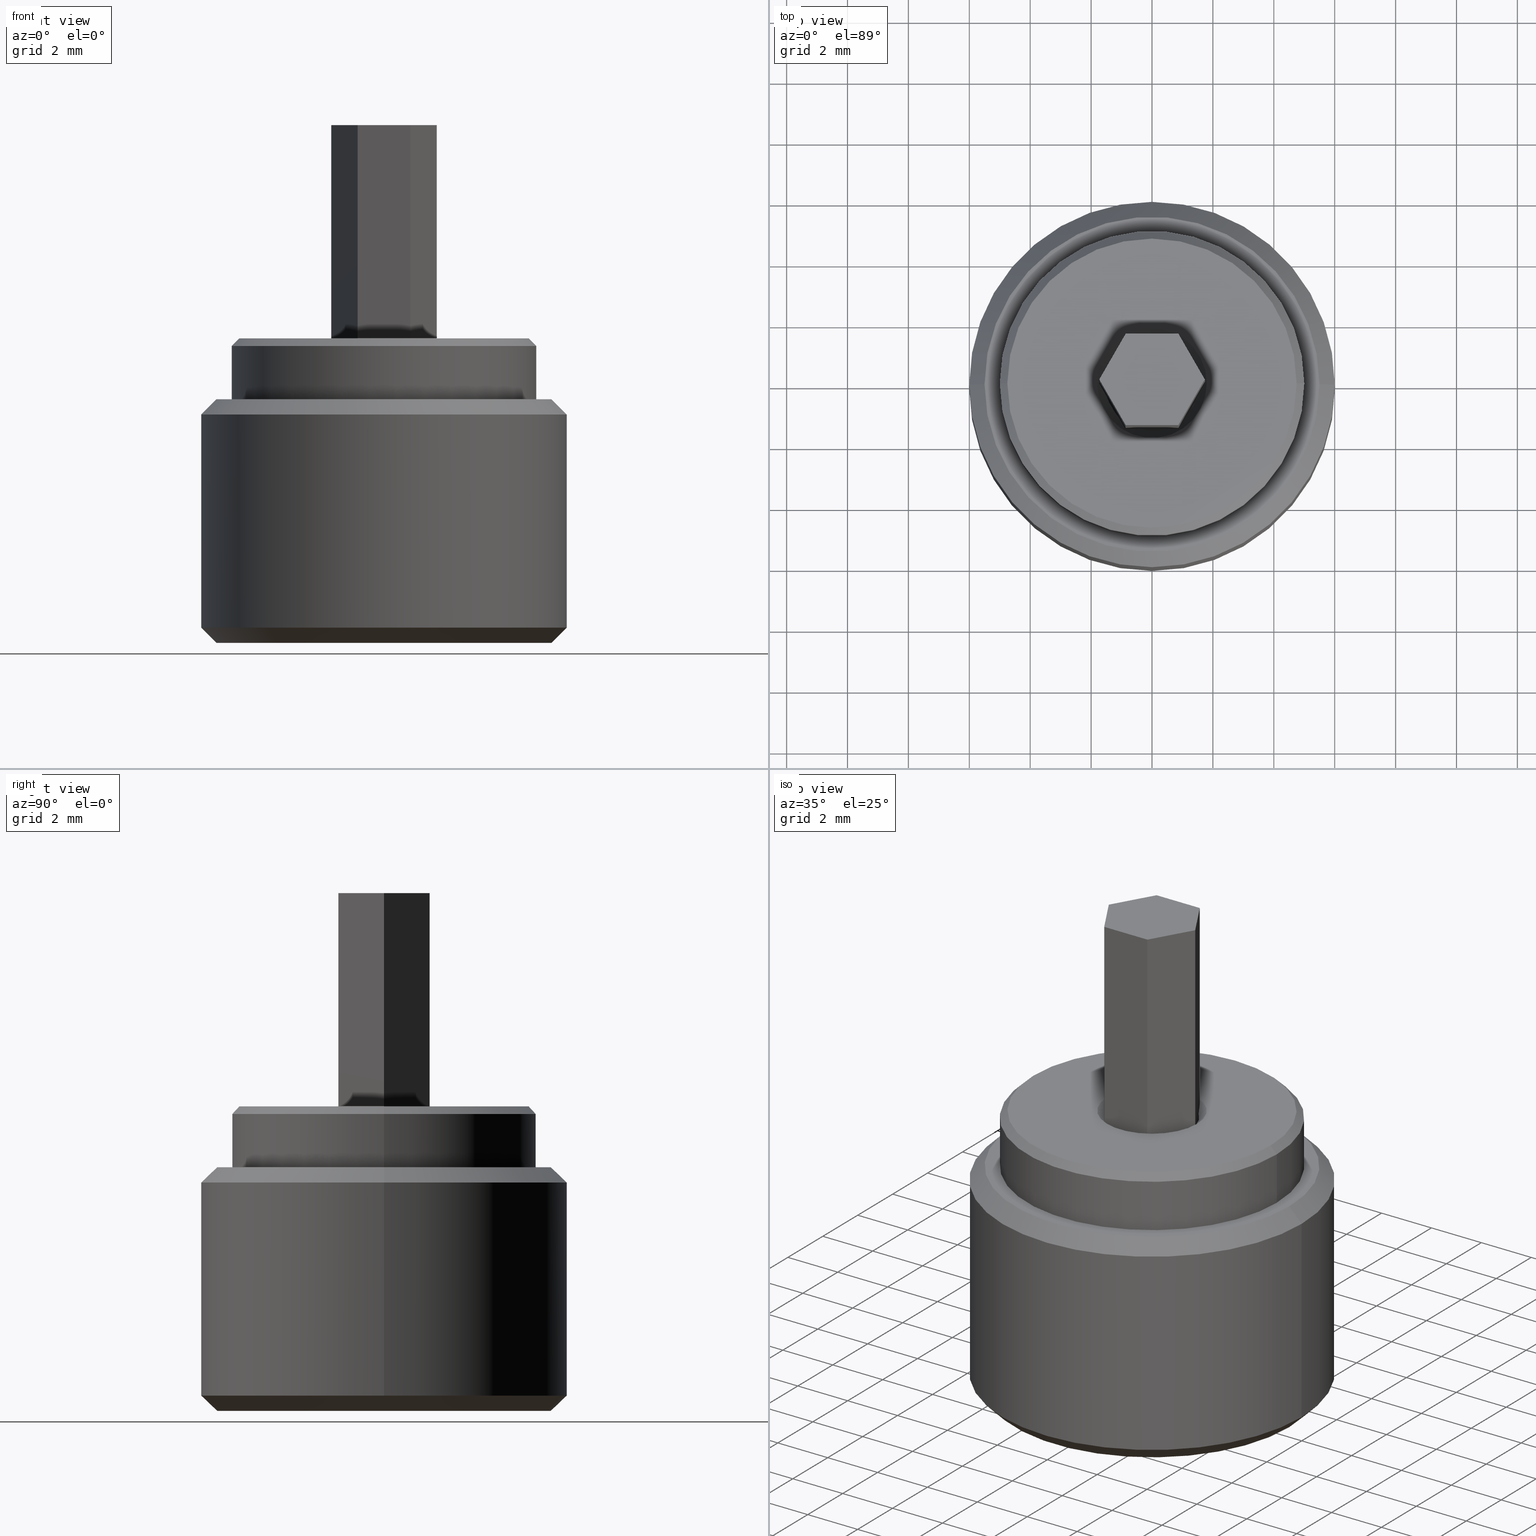
[diagram: canonical four-view strip — front | top / right | iso, engineering-drawing reading convention]
A machine part, canonical four-view strip (front | top / right | iso — engineering-drawing reading convention). The complete STEP part file that produces these views, byte-faithful:
ISO-10303-21;
HEADER;
FILE_DESCRIPTION (( 'STEP AP203' ),
    '1' );
FILE_NAME ('1.8.4.3_ZFN-#3-1210_��׼3x3mm��š��ĸ��������12mm��L=10mm.STEP',
    '2024-05-31T07:37:52',
    ( '' ),
    ( '' ),
    'SwSTEP 2.0',
    'SolidWorks 2021',
    '' );
FILE_SCHEMA (( 'CONFIG_CONTROL_DESIGN' ));
ENDSEC;

DATA;
#1 = AXIS2_PLACEMENT_3D ( 'NONE', #619, #220, #88 ) ;
#2 = VERTEX_POINT ( 'NONE', #408 ) ;
#3 = EDGE_CURVE ( 'NONE', #310, #632, #425, .T. ) ;
#4 = PERSON_AND_ORGANIZATION ( #752, #464 ) ;
#5 = CC_DESIGN_SECURITY_CLASSIFICATION ( #122, ( #542 ) ) ;
#6 = DIRECTION ( 'NONE',  ( -0.000000000000000000, -0.000000000000000000, -1.000000000000000000 ) ) ;
#7 = DIRECTION ( 'NONE',  ( 0.4999999999999998890, 0.8660254037844385966, 0.000000000000000000 ) ) ;
#8 = VERTEX_POINT ( 'NONE', #576 ) ;
#9 = DATE_AND_TIME ( #319, #458 ) ;
#10 = LINE ( 'NONE', #66, #474 ) ;
#11 = ORIENTED_EDGE ( 'NONE', *, *, #20, .F. ) ;
#12 = CARTESIAN_POINT ( 'NONE',  ( 0.000000000000000000, 0.000000000000000000, 7.500000000000000000 ) ) ;
#13 = EDGE_CURVE ( 'NONE', #207, #218, #697, .T. ) ;
#14 = AXIS2_PLACEMENT_3D ( 'NONE', #575, #970, #667 ) ;
#15 = ORIENTED_EDGE ( 'NONE', *, *, #799, .T. ) ;
#16 = AXIS2_PLACEMENT_3D ( 'NONE', #917, #756, #158 ) ;
#17 = AXIS2_PLACEMENT_3D ( 'NONE', #12, #869, #653 ) ;
#18 = LOCAL_TIME ( 15, 37, 52.00000000000000000, #250 ) ;
#19 = FACE_OUTER_BOUND ( 'NONE', #165, .T. ) ;
#20 = EDGE_CURVE ( 'NONE', #801, #167, #60, .T. ) ;
#21 = ORIENTED_EDGE ( 'NONE', *, *, #480, .T. ) ;
#22 = APPROVAL_DATE_TIME ( #95, #127 ) ;
#23 = DIRECTION ( 'NONE',  ( -0.000000000000000000, -0.000000000000000000, -1.000000000000000000 ) ) ;
#24 =( GEOMETRIC_REPRESENTATION_CONTEXT ( 3 ) GLOBAL_UNCERTAINTY_ASSIGNED_CONTEXT ( ( #347 ) ) GLOBAL_UNIT_ASSIGNED_CONTEXT ( ( #179, #92, #491 ) ) REPRESENTATION_CONTEXT ( 'NONE', 'WORKASPACE' ) );
#25 = DIRECTION ( 'NONE',  ( -0.000000000000000000, -0.000000000000000000, 1.000000000000000000 ) ) ;
#26 = AXIS2_PLACEMENT_3D ( 'NONE', #626, #703, #866 ) ;
#27 = CIRCLE ( 'NONE', #379, 5.500000000000000888 ) ;
#28 = ITEM_DEFINED_TRANSFORMATION ( 'NONE', 'NONE', #588,  #108 ) ;
#29 = EDGE_CURVE ( 'NONE', #709, #980, #253, .T. ) ;
#30 = DIRECTION ( 'NONE',  ( 1.000000000000000000, 0.000000000000000000, 0.000000000000000000 ) ) ;
#31 = DIRECTION ( 'NONE',  ( 0.7071067811865451302, 8.659560562354904508E-17, -0.7071067811865500152 ) ) ;
#32 = DIRECTION ( 'NONE',  ( -0.000000000000000000, -0.000000000000000000, -1.000000000000000000 ) ) ;
#33 = CC_DESIGN_PERSON_AND_ORGANIZATION_ASSIGNMENT ( #384, #610, ( #105 ) ) ;
#34 = CALENDAR_DATE ( 2024, 31, 5 ) ;
#35 = ORIENTED_EDGE ( 'NONE', *, *, #827, .F. ) ;
#36 = PLANE ( 'NONE',  #711 ) ;
#37 = APPROVAL_PERSON_ORGANIZATION ( #616, #182, #153 ) ;
#38 = ORIENTED_EDGE ( 'NONE', *, *, #138, .T. ) ;
#39 = PERSON_AND_ORGANIZATION ( #752, #464 ) ;
#40 = ORIENTED_EDGE ( 'NONE', *, *, #29, .T. ) ;
#41 = DIRECTION ( 'NONE',  ( -0.000000000000000000, -0.000000000000000000, -1.000000000000000000 ) ) ;
#42 = LINE ( 'NONE', #344, #777 ) ;
#43 = DATE_TIME_ROLE ( 'creation_date' ) ;
#44 = VERTEX_POINT ( 'NONE', #796 ) ;
#45 = DIRECTION ( 'NONE',  ( -0.000000000000000000, -0.000000000000000000, -1.000000000000000000 ) ) ;
#46 = EDGE_CURVE ( 'NONE', #759, #506, #663, .T. ) ;
#47 = CALENDAR_DATE ( 2024, 31, 5 ) ;
#48 = VERTEX_POINT ( 'NONE', #879 ) ;
#49 = CYLINDRICAL_SURFACE ( 'NONE', #240, 5.000000000000000000 ) ;
#50 = EDGE_CURVE ( 'NONE', #854, #695, #257, .T. ) ;
#51 = CARTESIAN_POINT ( 'NONE',  ( 0.000000000000000000, 0.000000000000000000, 0.4999999999999987232 ) ) ;
#52 = APPROVAL_DATE_TIME ( #875, #908 ) ;
#53 = ORIENTED_EDGE ( 'NONE', *, *, #163, .T. ) ;
#54 = CARTESIAN_POINT ( 'NONE',  ( -4.750000000000005329, 0.000000000000000000, 10.00000000000000178 ) ) ;
#55 = EDGE_CURVE ( 'NONE', #372, #801, #137, .T. ) ;
#56 = PERSON_AND_ORGANIZATION_ROLE ( 'classification_officer' ) ;
#57 = ORIENTED_EDGE ( 'NONE', *, *, #155, .F. ) ;
#58 = CARTESIAN_POINT ( 'NONE',  ( 0.8660254037844388186, -1.499999999999999778, 17.00000000000000000 ) ) ;
#59 = CIRCLE ( 'NONE', #622, 4.750000000000007105 ) ;
#60 = LINE ( 'NONE', #490, #611 ) ;
#61 = APPROVAL_DATE_TIME ( #541, #421 ) ;
#62 = ORIENTED_EDGE ( 'NONE', *, *, #609, .T. ) ;
#63 = EDGE_CURVE ( 'NONE', #167, #876, #733, .T. ) ;
#64 = DIRECTION ( 'NONE',  ( 1.000000000000000000, 0.000000000000000000, 0.000000000000000000 ) ) ;
#65 = AXIS2_PLACEMENT_3D ( 'NONE', #786, #110, #337 ) ;
#66 = CARTESIAN_POINT ( 'NONE',  ( -6.000000000000000888, 0.000000000000000000, 7.500000000000000000 ) ) ;
#67 = AXIS2_PLACEMENT_3D ( 'NONE', #256, #797, #325 ) ;
#68 = AXIS2_PLACEMENT_3D ( 'NONE', #58, #197, #208 ) ;
#69 = APPROVAL_PERSON_ORGANIZATION ( #293, #848, #446 ) ;
#70 = SECURITY_CLASSIFICATION_LEVEL ( 'unclassified' ) ;
#71 = VERTEX_POINT ( 'NONE', #107 ) ;
#72 = CARTESIAN_POINT ( 'NONE',  ( -1.732050807568877415, 0.000000000000000000, 17.00000000000000000 ) ) ;
#73 = DIRECTION ( 'NONE',  ( 0.000000000000000000, 0.000000000000000000, 1.000000000000000000 ) ) ;
#74 = DATE_TIME_ROLE ( 'classification_date' ) ;
#75 = LINE ( 'NONE', #374, #722 ) ;
#76 = LOCAL_TIME ( 15, 37, 52.00000000000000000, #590 ) ;
#77 = VECTOR ( 'NONE', #778, 1000.000000000000114 ) ;
#78 = FACE_OUTER_BOUND ( 'NONE', #864, .T. ) ;
#79 = EDGE_CURVE ( 'NONE', #891, #48, #868, .T. ) ;
#80 = COORDINATED_UNIVERSAL_TIME_OFFSET ( 8, 0, .AHEAD. ) ;
#81 = DIRECTION ( 'NONE',  ( -0.000000000000000000, -0.000000000000000000, -1.000000000000000000 ) ) ;
#82 = FACE_OUTER_BOUND ( 'NONE', #957, .T. ) ;
#83 = CC_DESIGN_PERSON_AND_ORGANIZATION_ASSIGNMENT ( #514, #203, ( #782 ) ) ;
#84 = EDGE_LOOP ( 'NONE', ( #660, #497, #555, #944 ) ) ;
#85 = CALENDAR_DATE ( 2024, 31, 5 ) ;
#86 = LOCAL_TIME ( 15, 37, 52.00000000000000000, #765 ) ;
#87 = CARTESIAN_POINT ( 'NONE',  ( 0.000000000000000000, 0.000000000000000000, 9.750000000000005329 ) ) ;
#88 = DIRECTION ( 'NONE',  ( 1.000000000000000000, 0.000000000000000000, 0.000000000000000000 ) ) ;
#89 = PRODUCT ( '1.8.4.3.2_ֱ��ʽ3x3mm���ǰ��֣�����11mm���㲿��', '1.8.4.3.2_ֱ��ʽ3x3mm���ǰ��֣�����11mm���㲿��', '', ( #434 ) ) ;
#90 = VERTEX_POINT ( 'NONE', #955 ) ;
#91 = EDGE_CURVE ( 'NONE', #807, #735, #42, .T. ) ;
#92 =( NAMED_UNIT ( * ) PLANE_ANGLE_UNIT ( ) SI_UNIT ( $, .RADIAN. ) );
#93 = FACE_OUTER_BOUND ( 'NONE', #972, .T. ) ;
#94 = VERTEX_POINT ( 'NONE', #268 ) ;
#95 = DATE_AND_TIME ( #85, #18 ) ;
#96 = EDGE_CURVE ( 'NONE', #891, #94, #798, .T. ) ;
#97 = PLANE ( 'NONE',  #67 ) ;
#98 = ORIENTED_EDGE ( 'NONE', *, *, #462, .F. ) ;
#99 = VECTOR ( 'NONE', #718, 1000.000000000000227 ) ;
#100 =( LENGTH_UNIT ( ) NAMED_UNIT ( * ) SI_UNIT ( .MILLI., .METRE. ) );
#101 = CARTESIAN_POINT ( 'NONE',  ( 0.000000000000000000, 0.000000000000000000, 7.500000000000000000 ) ) ;
#102 = ADVANCED_FACE ( 'NONE', ( #728, #286 ), #111, .T. ) ;
#103 = FACE_OUTER_BOUND ( 'NONE', #294, .T. ) ;
#104 = CARTESIAN_POINT ( 'NONE',  ( 0.000000000000000000, 0.000000000000000000, 0.000000000000000000 ) ) ;
#105 = PRODUCT_DEFINITION ( 'δ֪', '', #791, #719 ) ;
#106 = APPROVAL_PERSON_ORGANIZATION ( #426, #630, #345 ) ;
#107 = CARTESIAN_POINT ( 'NONE',  ( 5.500000000000000888, 0.000000000000000000, 0.000000000000000000 ) ) ;
#108 = AXIS2_PLACEMENT_3D ( 'NONE', #481, #852, #783 ) ;
#109 =( LENGTH_UNIT ( ) NAMED_UNIT ( * ) SI_UNIT ( .MILLI., .METRE. ) );
#110 = DIRECTION ( 'NONE',  ( 0.000000000000000000, 0.000000000000000000, 1.000000000000000000 ) ) ;
#111 = PLANE ( 'NONE',  #627 ) ;
#112 = APPROVAL_DATE_TIME ( #894, #493 ) ;
#113 = ORIENTED_EDGE ( 'NONE', *, *, #550, .T. ) ;
#114 = VECTOR ( 'NONE', #473, 1000.000000000000000 ) ;
#115 = CYLINDRICAL_SURFACE ( 'NONE', #832, 6.000000000000000888 ) ;
#116 = EDGE_LOOP ( 'NONE', ( #403, #603, #447, #200 ) ) ;
#117 = CALENDAR_DATE ( 2024, 31, 5 ) ;
#118 = ORIENTED_EDGE ( 'NONE', *, *, #20, .T. ) ;
#119 = ADVANCED_FACE ( 'NONE', ( #822 ), #751, .F. ) ;
#120 = DIRECTION ( 'NONE',  ( 1.000000000000000000, 0.000000000000000000, 0.000000000000000000 ) ) ;
#121 = DESIGN_CONTEXT ( 'detailed design', #647, 'design' ) ;
#122 = SECURITY_CLASSIFICATION ( '', '', #665 ) ;
#123 = VECTOR ( 'NONE', #598, 1000.000000000000000 ) ;
#124 = DATE_AND_TIME ( #348, #671 ) ;
#125 = VERTEX_POINT ( 'NONE', #216 ) ;
#126 = FACE_OUTER_BOUND ( 'NONE', #551, .T. ) ;
#127 = APPROVAL ( #557, 'UNKNOWN' ) ;
#128 = SHAPE_DEFINITION_REPRESENTATION ( #838, #534 ) ;
#129 = ORIENTED_EDGE ( 'NONE', *, *, #55, .T. ) ;
#130 = CARTESIAN_POINT ( 'NONE',  ( 0.000000000000000000, 0.000000000000000000, 9.750000000000003553 ) ) ;
#131 = CLOSED_SHELL ( 'NONE', ( #335, #329, #199, #562, #353, #694, #717, #468, #133, #382, #102, #774, #401, #520, #702, #975, #835, #657 ) ) ;
#132 = CC_DESIGN_APPROVAL ( #281, ( #566 ) ) ;
#133 = ADVANCED_FACE ( 'NONE', ( #103 ), #907, .F. ) ;
#134 = APPROVAL_DATE_TIME ( #758, #848 ) ;
#135 = ORIENTED_EDGE ( 'NONE', *, *, #688, .T. ) ;
#136 = PLANE ( 'NONE',  #14 ) ;
#137 = LINE ( 'NONE', #571, #225 ) ;
#138 = EDGE_CURVE ( 'NONE', #48, #891, #833, .T. ) ;
#139 = APPROVAL_ROLE ( '' ) ;
#140 = VERTEX_POINT ( 'NONE', #837 ) ;
#141 = CARTESIAN_POINT ( 'NONE',  ( 1.732050807568877415, 3.028886869432292374E-16, 17.00000000000000000 ) ) ;
#142 = DIRECTION ( 'NONE',  ( -0.000000000000000000, -0.000000000000000000, -1.000000000000000000 ) ) ;
#143 = APPROVAL_DATE_TIME ( #672, #182 ) ;
#144 = ORIENTED_EDGE ( 'NONE', *, *, #946, .F. ) ;
#145 = CARTESIAN_POINT ( 'NONE',  ( 0.000000000000000000, 0.000000000000000000, 0.000000000000000000 ) ) ;
#146 = CONICAL_SURFACE ( 'NONE', #499, 6.000000000000000888, 0.7853981633974482790 ) ;
#147 = DIRECTION ( 'NONE',  ( -1.000000000000000000, 0.000000000000000000, 0.000000000000000000 ) ) ;
#148 = VECTOR ( 'NONE', #252, 1000.000000000000227 ) ;
#149 = PERSON_AND_ORGANIZATION_ROLE ( 'design_owner' ) ;
#150 = DIRECTION ( 'NONE',  ( 1.000000000000000000, 0.000000000000000000, 0.000000000000000000 ) ) ;
#151 = EDGE_CURVE ( 'NONE', #705, #980, #826, .T. ) ;
#152 = DIRECTION ( 'NONE',  ( 0.000000000000000000, 0.000000000000000000, 1.000000000000000000 ) ) ;
#153 = APPROVAL_ROLE ( '' ) ;
#154 = CARTESIAN_POINT ( 'NONE',  ( 0.000000000000000000, 0.000000000000000000, 8.000000000000000000 ) ) ;
#155 = EDGE_CURVE ( 'NONE', #94, #441, #818, .T. ) ;
#156 = AXIS2_PLACEMENT_3D ( 'NONE', #856, #170, #30 ) ;
#157 = AXIS2_PLACEMENT_3D ( 'NONE', #300, #472, #692 ) ;
#158 = DIRECTION ( 'NONE',  ( 1.000000000000000000, 0.000000000000000000, 0.000000000000000000 ) ) ;
#159 = ORIENTED_EDGE ( 'NONE', *, *, #763, .F. ) ;
#160 = COORDINATED_UNIVERSAL_TIME_OFFSET ( 8, 0, .AHEAD. ) ;
#161 = DIRECTION ( 'NONE',  ( -0.000000000000000000, -0.000000000000000000, 1.000000000000000000 ) ) ;
#162 = DIRECTION ( 'NONE',  ( 1.000000000000000000, 0.000000000000000000, -0.000000000000000000 ) ) ;
#163 = EDGE_CURVE ( 'NONE', #679, #238, #195, .T. ) ;
#164 = AXIS2_PLACEMENT_3D ( 'NONE', #911, #224, #529 ) ;
#165 = EDGE_LOOP ( 'NONE', ( #652, #731, #620, #263 ) ) ;
#166 = DIRECTION ( 'NONE',  ( 1.000000000000000000, 0.000000000000000000, 0.000000000000000000 ) ) ;
#167 = VERTEX_POINT ( 'NONE', #704 ) ;
#168 = APPROVAL ( #243, 'UNKNOWN' ) ;
#169 = SECURITY_CLASSIFICATION_LEVEL ( 'unclassified' ) ;
#170 = DIRECTION ( 'NONE',  ( 0.000000000000000000, 0.000000000000000000, 1.000000000000000000 ) ) ;
#171 = FACE_OUTER_BOUND ( 'NONE', #276, .T. ) ;
#172 = ORIENTED_EDGE ( 'NONE', *, *, #954, .F. ) ;
#173 = DATE_TIME_ROLE ( 'classification_date' ) ;
#174 = APPLICATION_PROTOCOL_DEFINITION ( 'international standard', 'config_control_design', 1994, #863 ) ;
#175 = CARTESIAN_POINT ( 'NONE',  ( -6.000000000000000888, 0.000000000000000000, 0.4999999999999987232 ) ) ;
#176 = ORIENTED_EDGE ( 'NONE', *, *, #954, .T. ) ;
#177 = ITEM_DEFINED_TRANSFORMATION ( 'NONE', 'NONE', #156,  #108 ) ;
#178 = AXIS2_PLACEMENT_3D ( 'NONE', #386, #699, #648 ) ;
#179 =( LENGTH_UNIT ( ) NAMED_UNIT ( * ) SI_UNIT ( .MILLI., .METRE. ) );
#180 = PERSON_AND_ORGANIZATION ( #752, #464 ) ;
#181 = CARTESIAN_POINT ( 'NONE',  ( 0.8660254037844388186, 1.500000000000000000, 17.00000000000000000 ) ) ;
#182 = APPROVAL ( #459, 'δָ��' ) ;
#183 = CARTESIAN_POINT ( 'NONE',  ( 0.000000000000000000, 0.000000000000000000, 7.500000000000000000 ) ) ;
#184 = DIRECTION ( 'NONE',  ( 0.8660254037844385966, 0.5000000000000003331, -0.000000000000000000 ) ) ;
#185 = DIRECTION ( 'NONE',  ( 0.5000000000000001110, -0.8660254037844384856, 0.000000000000000000 ) ) ;
#186 = AXIS2_PLACEMENT_3D ( 'NONE', #219, #295, #607 ) ;
#187 = APPROVAL_STATUS ( 'not_yet_approved' ) ;
#188 = ORIENTED_EDGE ( 'NONE', *, *, #192, .T. ) ;
#189 = CARTESIAN_POINT ( 'NONE',  ( 0.8660254037844388186, 1.500000000000000000, 17.00000000000000000 ) ) ;
#190 = DIRECTION ( 'NONE',  ( 1.000000000000000000, 0.000000000000000000, 0.000000000000000000 ) ) ;
#191 = CIRCLE ( 'NONE', #17, 6.000000000000000888 ) ;
#192 = EDGE_CURVE ( 'NONE', #238, #218, #10, .T. ) ;
#193 = PERSON_AND_ORGANIZATION ( #752, #464 ) ;
#194 = ORIENTED_EDGE ( 'NONE', *, *, #63, .T. ) ;
#195 = CIRCLE ( 'NONE', #1, 5.500000000000000888 ) ;
#196 = AXIS2_PLACEMENT_3D ( 'NONE', #802, #889, #201 ) ;
#197 = DIRECTION ( 'NONE',  ( -0.8660254037844387076, 0.4999999999999999445, 0.000000000000000000 ) ) ;
#198 = CC_DESIGN_APPROVAL ( #182, ( #105 ) ) ;
#199 = ADVANCED_FACE ( 'NONE', ( #687 ), #387, .T. ) ;
#200 = ORIENTED_EDGE ( 'NONE', *, *, #96, .F. ) ;
#201 = DIRECTION ( 'NONE',  ( 1.000000000000000000, 0.000000000000000000, -0.000000000000000000 ) ) ;
#202 = VECTOR ( 'NONE', #81, 1000.000000000000000 ) ;
#203 = PERSON_AND_ORGANIZATION_ROLE ( 'design_owner' ) ;
#204 = DIRECTION ( 'NONE',  ( 0.000000000000000000, 0.000000000000000000, 1.000000000000000000 ) ) ;
#205 = EDGE_CURVE ( 'NONE', #854, #807, #564, .T. ) ;
#206 = PERSON_AND_ORGANIZATION ( #752, #464 ) ;
#207 = VERTEX_POINT ( 'NONE', #613 ) ;
#208 = DIRECTION ( 'NONE',  ( -0.4999999999999999445, -0.8660254037844387076, 0.000000000000000000 ) ) ;
#209 = VECTOR ( 'NONE', #190, 1000.000000000000000 ) ;
#210 = PRODUCT_RELATED_PRODUCT_CATEGORY ( 'detail', '', ( #89 ) ) ;
#211 = DIRECTION ( 'NONE',  ( 0.000000000000000000, 0.000000000000000000, 1.000000000000000000 ) ) ;
#212 = APPLICATION_CONTEXT ( 'configuration controlled 3d designs of mechanical parts and assemblies' ) ;
#213 = DATE_TIME_ROLE ( 'classification_date' ) ;
#214 = ORIENTED_EDGE ( 'NONE', *, *, #967, .T. ) ;
#215 = DIRECTION ( 'NONE',  ( 0.000000000000000000, 0.000000000000000000, -1.000000000000000000 ) ) ;
#216 = CARTESIAN_POINT ( 'NONE',  ( 1.800000000000001377, 0.000000000000000000, 10.00000000000000000 ) ) ;
#217 = APPLICATION_PROTOCOL_DEFINITION ( 'international standard', 'config_control_design', 1994, #539 ) ;
#218 = VERTEX_POINT ( 'NONE', #230 ) ;
#219 = CARTESIAN_POINT ( 'NONE',  ( 0.000000000000000000, 0.000000000000000000, 0.4999999999999987232 ) ) ;
#220 = DIRECTION ( 'NONE',  ( 0.000000000000000000, 0.000000000000000000, 1.000000000000000000 ) ) ;
#221 = EDGE_CURVE ( 'NONE', #876, #709, #236, .T. ) ;
#222 = APPROVAL_DATE_TIME ( #678, #707 ) ;
#223 = DIRECTION ( 'NONE',  ( -0.000000000000000000, -0.000000000000000000, 1.000000000000000000 ) ) ;
#224 = DIRECTION ( 'NONE',  ( -0.000000000000000000, -0.000000000000000000, 1.000000000000000000 ) ) ;
#225 = VECTOR ( 'NONE', #644, 1000.000000000000227 ) ;
#226 = CC_DESIGN_SECURITY_CLASSIFICATION ( #614, ( #990 ) ) ;
#227 = COORDINATED_UNIVERSAL_TIME_OFFSET ( 8, 0, .AHEAD. ) ;
#228 = CC_DESIGN_DATE_AND_TIME_ASSIGNMENT ( #315, #173, ( #743 ) ) ;
#229 = CARTESIAN_POINT ( 'NONE',  ( -1.732050807568877415, 0.000000000000000000, 17.00000000000000000 ) ) ;
#230 = CARTESIAN_POINT ( 'NONE',  ( -6.000000000000000888, 0.000000000000000000, 7.500000000000000000 ) ) ;
#231 = ORIENTED_EDGE ( 'NONE', *, *, #903, .F. ) ;
#232 = CALENDAR_DATE ( 2024, 31, 5 ) ;
#233 = LINE ( 'NONE', #367, #509 ) ;
#234 = CC_DESIGN_PERSON_AND_ORGANIZATION_ASSIGNMENT ( #941, #645, ( #743 ) ) ;
#235 = CONICAL_SURFACE ( 'NONE', #186, 6.000000000000000888, 0.7853981633974500554 ) ;
#236 = LINE ( 'NONE', #296, #254 ) ;
#237 = EDGE_CURVE ( 'NONE', #820, #705, #313, .T. ) ;
#238 = VERTEX_POINT ( 'NONE', #533 ) ;
#239 = SHAPE_DEFINITION_REPRESENTATION ( #683, #324 ) ;
#240 = AXIS2_PLACEMENT_3D ( 'NONE', #656, #732, #504 ) ;
#241 = CARTESIAN_POINT ( 'NONE',  ( 1.732050807568877415, 3.028886869432292374E-16, 17.00000000000000000 ) ) ;
#242 = CC_DESIGN_PERSON_AND_ORGANIZATION_ASSIGNMENT ( #880, #738, ( #542 ) ) ;
#243 = APPROVAL_STATUS ( 'not_yet_approved' ) ;
#244 = DIRECTION ( 'NONE',  ( 0.000000000000000000, 0.000000000000000000, 1.000000000000000000 ) ) ;
#245 = DIRECTION ( 'NONE',  ( -0.7071067811865487940, 8.659560562354950115E-17, 0.7071067811865463515 ) ) ;
#246 = ORIENTED_EDGE ( 'NONE', *, *, #982, .T. ) ;
#247 = LINE ( 'NONE', #712, #148 ) ;
#248 = AXIS2_PLACEMENT_3D ( 'NONE', #385, #846, #150 ) ;
#249 = EDGE_LOOP ( 'NONE', ( #596, #38 ) ) ;
#250 = COORDINATED_UNIVERSAL_TIME_OFFSET ( 8, 0, .AHEAD. ) ;
#251 = EDGE_CURVE ( 'NONE', #71, #759, #623, .T. ) ;
#252 = DIRECTION ( 'NONE',  ( 0.4999999999999998890, 0.8660254037844385966, 0.000000000000000000 ) ) ;
#253 = LINE ( 'NONE', #594, #99 ) ;
#254 = VECTOR ( 'NONE', #7, 1000.000000000000227 ) ;
#255 = CC_DESIGN_PERSON_AND_ORGANIZATION_ASSIGNMENT ( #4, #834, ( #650 ) ) ;
#256 = CARTESIAN_POINT ( 'NONE',  ( -0.8660254037844392627, 1.500000000000000000, 17.00000000000000000 ) ) ;
#257 = LINE ( 'NONE', #950, #757 ) ;
#258 = UNCERTAINTY_MEASURE_WITH_UNIT (LENGTH_MEASURE( 1.000000000000000082E-05 ), #109, 'distance_accuracy_value', 'NONE');
#259 = CALENDAR_DATE ( 2024, 31, 5 ) ;
#260 = EDGE_LOOP ( 'NONE', ( #935, #561, #669, #500 ) ) ;
#261 = PLANE ( 'NONE',  #196 ) ;
#262 = EDGE_CURVE ( 'NONE', #705, #310, #927, .T. ) ;
#263 = ORIENTED_EDGE ( 'NONE', *, *, #624, .T. ) ;
#264 = PERSON_AND_ORGANIZATION ( #752, #464 ) ;
#265 = ORIENTED_EDGE ( 'NONE', *, *, #433, .T. ) ;
#266 = FACE_OUTER_BOUND ( 'NONE', #900, .T. ) ;
#267 = CC_DESIGN_DATE_AND_TIME_ASSIGNMENT ( #887, #505, ( #617 ) ) ;
#268 = CARTESIAN_POINT ( 'NONE',  ( 5.000000000000000000, 0.000000000000000000, 9.750000000000005329 ) ) ;
#269 = VECTOR ( 'NONE', #933, 1000.000000000000000 ) ;
#270 = PERSON_AND_ORGANIZATION ( #752, #464 ) ;
#271 = VECTOR ( 'NONE', #412, 1000.000000000000227 ) ;
#272 = VECTOR ( 'NONE', #166, 1000.000000000000000 ) ;
#273 = FACE_OUTER_BOUND ( 'NONE', #427, .T. ) ;
#274 = ORGANIZATION ( 'NAUO-ORG1', 'UNSPECIFIED', 'UNSPECIFIED' ) ;
#275 = COORDINATED_UNIVERSAL_TIME_OFFSET ( 8, 0, .AHEAD. ) ;
#276 = EDGE_LOOP ( 'NONE', ( #519, #246 ) ) ;
#277 = CARTESIAN_POINT ( 'NONE',  ( 0.000000000000000000, 0.000000000000000000, 6.000000000000000000 ) ) ;
#278 = APPROVAL_PERSON_ORGANIZATION ( #270, #781, #725 ) ;
#279 = PERSON_AND_ORGANIZATION_ROLE ( 'creator' ) ;
#280 = ORIENTED_EDGE ( 'NONE', *, *, #55, .F. ) ;
#281 = APPROVAL ( #602, 'δָ��' ) ;
#282 = DIRECTION ( 'NONE',  ( -0.7071067811865451302, 0.000000000000000000, -0.7071067811865500152 ) ) ;
#283 = COORDINATED_UNIVERSAL_TIME_OFFSET ( 8, 0, .AHEAD. ) ;
#284 = EDGE_LOOP ( 'NONE', ( #129, #829, #591, #787 ) ) ;
#285 = LINE ( 'NONE', #986, #123 ) ;
#286 = FACE_BOUND ( 'NONE', #249, .T. ) ;
#287 = LOCAL_TIME ( 15, 37, 52.00000000000000000, #80 ) ;
#288 = APPROVAL_ROLE ( '' ) ;
#289 = ORIENTED_EDGE ( 'NONE', *, *, #151, .T. ) ;
#290 = DIRECTION ( 'NONE',  ( 0.5000000000000001110, -0.8660254037844384856, 0.000000000000000000 ) ) ;
#291 = CARTESIAN_POINT ( 'NONE',  ( 0.000000000000000000, 0.000000000000000000, 0.000000000000000000 ) ) ;
#292 = ADVANCED_FACE ( 'NONE', ( #78 ), #989, .F. ) ;
#293 = PERSON_AND_ORGANIZATION ( #752, #464 ) ;
#294 = EDGE_LOOP ( 'NONE', ( #929, #739 ) ) ;
#295 = DIRECTION ( 'NONE',  ( -0.000000000000000000, -0.000000000000000000, 1.000000000000000000 ) ) ;
#296 = CARTESIAN_POINT ( 'NONE',  ( 0.8660254037844388186, -1.499999999999999778, 6.000000000000000000 ) ) ;
#297 = MANIFOLD_SOLID_BREP ( '����2', #131 ) ;
#298 = CC_DESIGN_PERSON_AND_ORGANIZATION_ASSIGNMENT ( #359, #56, ( #566 ) ) ;
#299 = APPROVAL_ROLE ( '' ) ;
#300 = CARTESIAN_POINT ( 'NONE',  ( 0.000000000000000000, 0.000000000000000000, 9.750000000000003553 ) ) ;
#301 = DIRECTION ( 'NONE',  ( -0.7071067811865474617, 0.000000000000000000, -0.7071067811865474617 ) ) ;
#302 = CC_DESIGN_SECURITY_CLASSIFICATION ( #743, ( #991 ) ) ;
#303 = LOCAL_TIME ( 15, 37, 52.00000000000000000, #422 ) ;
#304 = ORIENTED_EDGE ( 'NONE', *, *, #934, .T. ) ;
#305 = APPROVAL_STATUS ( 'not_yet_approved' ) ;
#306 = EDGE_CURVE ( 'NONE', #2, #125, #947, .T. ) ;
#307 = DIRECTION ( 'NONE',  ( 0.7071067811865474617, 8.659560562354932858E-17, -0.7071067811865474617 ) ) ;
#308 = PRODUCT_DEFINITION_SHAPE ( 'NONE', 'NONE',  #767 ) ;
#309 = DIRECTION ( 'NONE',  ( -0.000000000000000000, -0.000000000000000000, -1.000000000000000000 ) ) ;
#310 = VERTEX_POINT ( 'NONE', #449 ) ;
#311 = CC_DESIGN_DATE_AND_TIME_ASSIGNMENT ( #734, #43, ( #767 ) ) ;
#312 = CIRCLE ( 'NONE', #923, 1.550000000000000044 ) ;
#313 = LINE ( 'NONE', #608, #549 ) ;
#314 = ORIENTED_EDGE ( 'NONE', *, *, #861, .F. ) ;
#315 = DATE_AND_TIME ( #865, #870 ) ;
#316 = LINE ( 'NONE', #628, #269 ) ;
#317 = AXIS2_PLACEMENT_3D ( 'NONE', #104, #409, #723 ) ;
#318 = ORIENTED_EDGE ( 'NONE', *, *, #221, .T. ) ;
#319 = CALENDAR_DATE ( 2024, 31, 5 ) ;
#320 = CC_DESIGN_SECURITY_CLASSIFICATION ( #566, ( #791 ) ) ;
#321 = DIRECTION ( 'NONE',  ( 0.000000000000000000, 0.000000000000000000, 1.000000000000000000 ) ) ;
#322 = DIRECTION ( 'NONE',  ( -0.000000000000000000, -0.000000000000000000, 1.000000000000000000 ) ) ;
#323 = EDGE_LOOP ( 'NONE', ( #360, #715, #637, #810, #113, #939 ) ) ;
#324 = SHAPE_REPRESENTATION ( '1.8.4.3.1_��׼3.1mmԲ����š��ĸ���壬������12mm��L=10mm', ( #108 ), #444 ) ;
#325 = DIRECTION ( 'NONE',  ( 0.4999999999999997224, 0.8660254037844387076, 0.000000000000000000 ) ) ;
#326 = LOCAL_TIME ( 15, 37, 52.00000000000000000, #651 ) ;
#327 = CONICAL_SURFACE ( 'NONE', #157, 1.550000000000000044, 0.7853981633974579379 ) ;
#328 = ORIENTED_EDGE ( 'NONE', *, *, #827, .T. ) ;
#329 = ADVANCED_FACE ( 'NONE', ( #693 ), #516, .F. ) ;
#330 = PLANE ( 'NONE',  #65 ) ;
#331 = DIRECTION ( 'NONE',  ( 1.000000000000000000, 0.000000000000000000, 0.000000000000000000 ) ) ;
#332 = AXIS2_PLACEMENT_3D ( 'NONE', #724, #32, #494 ) ;
#333 = PERSON_AND_ORGANIZATION ( #752, #464 ) ;
#334 = EDGE_LOOP ( 'NONE', ( #98, #265, #470, #389 ) ) ;
#335 = ADVANCED_FACE ( 'NONE', ( #467 ), #803, .T. ) ;
#336 = APPROVAL_PERSON_ORGANIZATION ( #333, #908, #572 ) ;
#337 = DIRECTION ( 'NONE',  ( 1.000000000000000000, 0.000000000000000000, -0.000000000000000000 ) ) ;
#338 = PERSON ( 'NAUO-PER2', 'UNSPECIFIED', 'UNSPECIFIED', ('UNSPECIFIED'), ('UNSPECIFIED'), ('UNSPECIFIED') ) ;
#339 = CARTESIAN_POINT ( 'NONE',  ( -0.8660254037844392627, 1.500000000000000000, 17.00000000000000000 ) ) ;
#340 = COORDINATED_UNIVERSAL_TIME_OFFSET ( 8, 0, .AHEAD. ) ;
#341 = EDGE_LOOP ( 'NONE', ( #328, #53 ) ) ;
#342 = DIRECTION ( 'NONE',  ( 0.000000000000000000, 0.000000000000000000, 1.000000000000000000 ) ) ;
#343 = CC_DESIGN_DATE_AND_TIME_ASSIGNMENT ( #899, #213, ( #566 ) ) ;
#344 = CARTESIAN_POINT ( 'NONE',  ( -1.550000000000000044, 1.898202538678397459E-16, 6.000000000000000000 ) ) ;
#345 = APPROVAL_ROLE ( '' ) ;
#346 = DIRECTION ( 'NONE',  ( -1.000000000000000000, 0.000000000000000000, 0.000000000000000000 ) ) ;
#347 = UNCERTAINTY_MEASURE_WITH_UNIT (LENGTH_MEASURE( 1.000000000000000082E-05 ), #179, 'distance_accuracy_value', 'NONE');
#348 = CALENDAR_DATE ( 2024, 31, 5 ) ;
#349 = ORIENTED_EDGE ( 'NONE', *, *, #306, .T. ) ;
#350 = AXIS2_PLACEMENT_3D ( 'NONE', #983, #142, #841 ) ;
#351 = DIRECTION ( 'NONE',  ( -0.000000000000000000, -0.000000000000000000, -1.000000000000000000 ) ) ;
#352 = CC_DESIGN_APPROVAL ( #127, ( #743 ) ) ;
#353 = ADVANCED_FACE ( 'NONE', ( #82 ), #457, .F. ) ;
#354 = DATE_AND_TIME ( #585, #720 ) ;
#355 = ORIENTED_EDGE ( 'NONE', *, *, #96, .T. ) ;
#356 = DIRECTION ( 'NONE',  ( 0.000000000000000000, 0.000000000000000000, -1.000000000000000000 ) ) ;
#357 = UNCERTAINTY_MEASURE_WITH_UNIT (LENGTH_MEASURE( 1.000000000000000082E-05 ), #100, 'distance_accuracy_value', 'NONE');
#358 =( GEOMETRIC_REPRESENTATION_CONTEXT ( 3 ) GLOBAL_UNCERTAINTY_ASSIGNED_CONTEXT ( ( #258 ) ) GLOBAL_UNIT_ASSIGNED_CONTEXT ( ( #109, #640, #942 ) ) REPRESENTATION_CONTEXT ( 'NONE', 'WORKASPACE' ) );
#359 = PERSON_AND_ORGANIZATION ( #752, #464 ) ;
#360 = ORIENTED_EDGE ( 'NONE', *, *, #237, .T. ) ;
#361 =( REPRESENTATION_RELATIONSHIP ('NONE','NONE', #534, #324 ) REPRESENTATION_RELATIONSHIP_WITH_TRANSFORMATION ( #28 )SHAPE_REPRESENTATION_RELATIONSHIP( ) );
#362 = CARTESIAN_POINT ( 'NONE',  ( -0.8660254037844383745, -1.499999999999999778, 17.00000000000000000 ) ) ;
#363 = CARTESIAN_POINT ( 'NONE',  ( -0.8660254037844383745, -1.499999999999999778, 17.00000000000000000 ) ) ;
#364 = CONICAL_SURFACE ( 'NONE', #450, 6.000000000000000888, 0.7853981633974482790 ) ;
#365 = PERSON_AND_ORGANIZATION ( #752, #464 ) ;
#366 = ORIENTED_EDGE ( 'NONE', *, *, #550, .F. ) ;
#367 = CARTESIAN_POINT ( 'NONE',  ( -6.000000000000000888, 0.000000000000000000, 10.00000000000000000 ) ) ;
#368 = ADVANCED_FACE ( 'NONE', ( #636 ), #554, .F. ) ;
#369 = AXIS2_PLACEMENT_3D ( 'NONE', #682, #764, #147 ) ;
#370 = DIRECTION ( 'NONE',  ( 0.4999999999999999445, -0.8660254037844385966, 0.000000000000000000 ) ) ;
#371 = APPLICATION_PROTOCOL_DEFINITION ( 'international standard', 'config_control_design', 1994, #437 ) ;
#372 = VERTEX_POINT ( 'NONE', #400 ) ;
#373 = PRODUCT_DEFINITION_SHAPE ( 'NONE', 'NONE',  #991 ) ;
#374 = CARTESIAN_POINT ( 'NONE',  ( -0.8660254037844392627, 1.500000000000000000, 17.00000000000000000 ) ) ;
#375 = CC_DESIGN_PERSON_AND_ORGANIZATION_ASSIGNMENT ( #851, #391, ( #614 ) ) ;
#376 = CARTESIAN_POINT ( 'NONE',  ( 0.8660254037844388186, 1.500000000000000000, 17.00000000000000000 ) ) ;
#377 = PERSON_AND_ORGANIZATION_ROLE ( 'classification_officer' ) ;
#378 = CC_DESIGN_APPROVAL ( #781, ( #542 ) ) ;
#379 = AXIS2_PLACEMENT_3D ( 'NONE', #145, #916, #532 ) ;
#380 = DIRECTION ( 'NONE',  ( 1.000000000000000000, 0.000000000000000000, 0.000000000000000000 ) ) ;
#381 = CARTESIAN_POINT ( 'NONE',  ( 0.000000000000000000, 0.000000000000000000, 9.750000000000005329 ) ) ;
#382 = ADVANCED_FACE ( 'NONE', ( #93 ), #857, .T. ) ;
#383 = EDGE_LOOP ( 'NONE', ( #969, #524, #952, #745 ) ) ;
#384 = PERSON_AND_ORGANIZATION ( #752, #464 ) ;
#385 = CARTESIAN_POINT ( 'NONE',  ( 0.000000000000000000, 0.000000000000000000, 10.00000000000000000 ) ) ;
#386 = CARTESIAN_POINT ( 'NONE',  ( 0.000000000000000000, 0.000000000000000000, 6.000000000000000000 ) ) ;
#387 = CONICAL_SURFACE ( 'NONE', #164, 6.000000000000000888, 0.7853981633974500554 ) ;
#388 = CC_DESIGN_APPROVAL ( #493, ( #122 ) ) ;
#389 = ORIENTED_EDGE ( 'NONE', *, *, #251, .F. ) ;
#390 = PRODUCT_RELATED_PRODUCT_CATEGORY ( 'detail', '', ( #782 ) ) ;
#391 = PERSON_AND_ORGANIZATION_ROLE ( 'classification_officer' ) ;
#392 = LINE ( 'NONE', #229, #202 ) ;
#393 = DIRECTION ( 'NONE',  ( 0.000000000000000000, 0.000000000000000000, -1.000000000000000000 ) ) ;
#394 = ORIENTED_EDGE ( 'NONE', *, *, #963, .F. ) ;
#395 = CARTESIAN_POINT ( 'NONE',  ( 0.000000000000000000, 0.000000000000000000, 6.000000000000000000 ) ) ;
#396 = CYLINDRICAL_SURFACE ( 'NONE', #931, 1.550000000000000044 ) ;
#397 = ORIENTED_EDGE ( 'NONE', *, *, #741, .F. ) ;
#398 = COORDINATED_UNIVERSAL_TIME_OFFSET ( 8, 0, .AHEAD. ) ;
#399 = AXIS2_PLACEMENT_3D ( 'NONE', #808, #356, #517 ) ;
#400 = CARTESIAN_POINT ( 'NONE',  ( -0.8660254037844392627, 1.500000000000000000, 6.000000000000000000 ) ) ;
#401 = ADVANCED_FACE ( 'NONE', ( #19 ), #396, .F. ) ;
#402 = VECTOR ( 'NONE', #768, 1000.000000000000000 ) ;
#403 = ORIENTED_EDGE ( 'NONE', *, *, #138, .F. ) ;
#404 = CONTEXT_DEPENDENT_SHAPE_REPRESENTATION ( #489, #373 ) ;
#405 = CC_DESIGN_APPROVAL ( #848, ( #791 ) ) ;
#406 = DIRECTION ( 'NONE',  ( -0.000000000000000000, -0.000000000000000000, -1.000000000000000000 ) ) ;
#407 = CC_DESIGN_PERSON_AND_ORGANIZATION_ASSIGNMENT ( #451, #377, ( #871 ) ) ;
#408 = CARTESIAN_POINT ( 'NONE',  ( -1.800000000000001377, 2.204364238465237548E-16, 10.00000000000000000 ) ) ;
#409 = DIRECTION ( 'NONE',  ( -0.000000000000000000, -0.000000000000000000, -1.000000000000000000 ) ) ;
#410 = CC_DESIGN_APPROVAL ( #707, ( #871 ) ) ;
#411 = VECTOR ( 'NONE', #825, 1000.000000000000114 ) ;
#412 = DIRECTION ( 'NONE',  ( -0.4999999999999997780, -0.8660254037844387076, 0.000000000000000000 ) ) ;
#413 = ADVANCED_FACE ( 'NONE', ( #477 ), #97, .F. ) ;
#414 = PERSON_AND_ORGANIZATION ( #752, #464 ) ;
#415 = ORIENTED_EDGE ( 'NONE', *, *, #221, .F. ) ;
#416 = PERSON ( 'NAUO-PER1', 'UNSPECIFIED', 'UNSPECIFIED', ('UNSPECIFIED'), ('UNSPECIFIED'), ('UNSPECIFIED') ) ;
#417 = DIRECTION ( 'NONE',  ( 0.000000000000000000, -0.000000000000000000, -1.000000000000000000 ) ) ;
#418 = CONICAL_SURFACE ( 'NONE', #399, 4.750000000000005329, 0.7853981633974447263 ) ;
#419 = CARTESIAN_POINT ( 'NONE',  ( 0.000000000000000000, 0.000000000000000000, 8.000000000000000000 ) ) ;
#420 = AXIS2_PLACEMENT_3D ( 'NONE', #804, #654, #676 ) ;
#421 = APPROVAL ( #305, 'δָ��' ) ;
#422 = COORDINATED_UNIVERSAL_TIME_OFFSET ( 8, 0, .AHEAD. ) ;
#423 = ORIENTED_EDGE ( 'NONE', *, *, #570, .T. ) ;
#424 = CARTESIAN_POINT ( 'NONE',  ( 0.000000000000000000, 0.000000000000000000, 7.500000000000000000 ) ) ;
#425 = LINE ( 'NONE', #339, #271 ) ;
#426 = PERSON_AND_ORGANIZATION ( #752, #464 ) ;
#427 = EDGE_LOOP ( 'NONE', ( #318, #483, #785, #423 ) ) ;
#428 = CARTESIAN_POINT ( 'NONE',  ( 0.000000000000000000, 0.000000000000000000, 10.00000000000000000 ) ) ;
#429 = VECTOR ( 'NONE', #6, 1000.000000000000000 ) ;
#430 = APPROVAL_DATE_TIME ( #354, #630 ) ;
#431 = EDGE_LOOP ( 'NONE', ( #985, #304, #435, #394 ) ) ;
#432 = FACE_OUTER_BOUND ( 'NONE', #323, .T. ) ;
#433 = EDGE_CURVE ( 'NONE', #924, #506, #563, .T. ) ;
#434 = MECHANICAL_CONTEXT ( 'NONE', #212, 'mechanical' ) ;
#435 = ORIENTED_EDGE ( 'NONE', *, *, #799, .F. ) ;
#436 = VECTOR ( 'NONE', #897, 1000.000000000000000 ) ;
#437 = APPLICATION_CONTEXT ( 'configuration controlled 3d designs of mechanical parts and assemblies' ) ;
#438 = DIRECTION ( 'NONE',  ( 1.000000000000000000, 0.000000000000000000, 0.000000000000000000 ) ) ;
#439 = CC_DESIGN_PERSON_AND_ORGANIZATION_ASSIGNMENT ( #206, #744, ( #89 ) ) ;
#440 = COORDINATED_UNIVERSAL_TIME_OFFSET ( 8, 0, .AHEAD. ) ;
#441 = VERTEX_POINT ( 'NONE', #794 ) ;
#442 = DIRECTION ( 'NONE',  ( -0.000000000000000000, -0.000000000000000000, -1.000000000000000000 ) ) ;
#443 = DIRECTION ( 'NONE',  ( 1.000000000000000000, 0.000000000000000000, -0.000000000000000000 ) ) ;
#444 =( GEOMETRIC_REPRESENTATION_CONTEXT ( 3 ) GLOBAL_UNCERTAINTY_ASSIGNED_CONTEXT ( ( #357 ) ) GLOBAL_UNIT_ASSIGNED_CONTEXT ( ( #100, #558, #553 ) ) REPRESENTATION_CONTEXT ( 'NONE', 'WORKASPACE' ) );
#445 = EDGE_CURVE ( 'NONE', #44, #820, #247, .T. ) ;
#446 = APPROVAL_ROLE ( '' ) ;
#447 = ORIENTED_EDGE ( 'NONE', *, *, #946, .T. ) ;
#448 = CARTESIAN_POINT ( 'NONE',  ( 6.000000000000000888, 7.347880794884120722E-16, 7.500000000000000000 ) ) ;
#449 = CARTESIAN_POINT ( 'NONE',  ( -0.8660254037844392627, 1.500000000000000000, 17.00000000000000000 ) ) ;
#450 = AXIS2_PLACEMENT_3D ( 'NONE', #424, #41, #346 ) ;
#451 = PERSON_AND_ORGANIZATION ( #752, #464 ) ;
#452 = ORIENTED_EDGE ( 'NONE', *, *, #982, .F. ) ;
#453 = ADVANCED_FACE ( 'NONE', ( #726 ), #36, .F. ) ;
#454 = AXIS2_PLACEMENT_3D ( 'NONE', #241, #538, #370 ) ;
#455 = LINE ( 'NONE', #766, #429 ) ;
#456 = CIRCLE ( 'NONE', #317, 5.500000000000000888 ) ;
#457 = CYLINDRICAL_SURFACE ( 'NONE', #178, 1.550000000000000044 ) ;
#458 = LOCAL_TIME ( 15, 37, 52.00000000000000000, #855 ) ;
#459 = APPROVAL_STATUS ( 'not_yet_approved' ) ;
#460 = DIRECTION ( 'NONE',  ( -0.000000000000000000, -0.000000000000000000, -1.000000000000000000 ) ) ;
#461 = DIRECTION ( 'NONE',  ( 1.000000000000000000, 0.000000000000000000, 0.000000000000000000 ) ) ;
#462 = EDGE_CURVE ( 'NONE', #924, #71, #456, .T. ) ;
#463 = PERSON_AND_ORGANIZATION ( #752, #464 ) ;
#464 = ORGANIZATION ( 'δָ��', 'δָ��', '' ) ;
#465 = CIRCLE ( 'NONE', #248, 1.800000000000001377 ) ;
#466 = FACE_OUTER_BOUND ( 'NONE', #918, .T. ) ;
#467 = FACE_OUTER_BOUND ( 'NONE', #527, .T. ) ;
#468 = ADVANCED_FACE ( 'NONE', ( #862 ), #853, .T. ) ;
#469 = ADVANCED_BREP_SHAPE_REPRESENTATION ( '', ( #634, #108 ), #358 ) ;
#470 = ORIENTED_EDGE ( 'NONE', *, *, #46, .F. ) ;
#471 = APPROVAL_DATE_TIME ( #9, #168 ) ;
#472 = DIRECTION ( 'NONE',  ( 0.000000000000000000, 0.000000000000000000, 1.000000000000000000 ) ) ;
#473 = DIRECTION ( 'NONE',  ( 0.7071067811865487940, 0.000000000000000000, 0.7071067811865463515 ) ) ;
#474 = VECTOR ( 'NONE', #301, 1000.000000000000114 ) ;
#475 = ORIENTED_EDGE ( 'NONE', *, *, #967, .F. ) ;
#476 = PRODUCT_DEFINITION_SHAPE ( 'NONE', 'NONE',  #990 ) ;
#477 = FACE_OUTER_BOUND ( 'NONE', #284, .T. ) ;
#478 = ORIENTED_EDGE ( 'NONE', *, *, #624, .F. ) ;
#479 = COORDINATED_UNIVERSAL_TIME_OFFSET ( 8, 0, .AHEAD. ) ;
#480 = EDGE_CURVE ( 'NONE', #90, #94, #938, .T. ) ;
#481 = CARTESIAN_POINT ( 'NONE',  ( 0.000000000000000000, 0.000000000000000000, 0.000000000000000000 ) ) ;
#482 = CARTESIAN_POINT ( 'NONE',  ( 4.750000000000005329, 5.817072295949934328E-16, 10.00000000000000178 ) ) ;
#483 = ORIENTED_EDGE ( 'NONE', *, *, #921, .F. ) ;
#484 = CC_DESIGN_DATE_AND_TIME_ASSIGNMENT ( #753, #913, ( #105 ) ) ;
#485 = CARTESIAN_POINT ( 'NONE',  ( 0.000000000000000000, 0.000000000000000000, 10.00000000000000000 ) ) ;
#486 = ORIENTED_EDGE ( 'NONE', *, *, #237, .F. ) ;
#487 = LOCAL_TIME ( 15, 37, 52.00000000000000000, #398 ) ;
#488 = CARTESIAN_POINT ( 'NONE',  ( 0.000000000000000000, 0.000000000000000000, 6.000000000000000000 ) ) ;
#489 =( REPRESENTATION_RELATIONSHIP ('NONE','NONE', #534, #642 ) REPRESENTATION_RELATIONSHIP_WITH_TRANSFORMATION ( #177 )SHAPE_REPRESENTATION_RELATIONSHIP( ) );
#490 = CARTESIAN_POINT ( 'NONE',  ( -1.732050807568877415, 0.000000000000000000, 6.000000000000000000 ) ) ;
#491 =( NAMED_UNIT ( * ) SI_UNIT ( $, .STERADIAN. ) SOLID_ANGLE_UNIT ( ) );
#492 = DIRECTION ( 'NONE',  ( -1.000000000000000000, 0.000000000000000000, 0.000000000000000000 ) ) ;
#493 = APPROVAL ( #800, 'δָ��' ) ;
#494 = DIRECTION ( 'NONE',  ( 1.000000000000000000, 0.000000000000000000, 0.000000000000000000 ) ) ;
#495 = DESIGN_CONTEXT ( 'detailed design', #507, 'design' ) ;
#496 = PERSON_AND_ORGANIZATION ( #752, #464 ) ;
#497 = ORIENTED_EDGE ( 'NONE', *, *, #13, .T. ) ;
#498 = LINE ( 'NONE', #362, #629 ) ;
#499 = AXIS2_PLACEMENT_3D ( 'NONE', #101, #406, #784 ) ;
#500 = ORIENTED_EDGE ( 'NONE', *, *, #795, .F. ) ;
#501 = LOCAL_TIME ( 15, 37, 52.00000000000000000, #904 ) ;
#502 = APPROVAL_DATE_TIME ( #124, #781 ) ;
#503 = ORIENTED_EDGE ( 'NONE', *, *, #155, .T. ) ;
#504 = DIRECTION ( 'NONE',  ( 1.000000000000000000, 0.000000000000000000, 0.000000000000000000 ) ) ;
#505 = DATE_TIME_ROLE ( 'creation_date' ) ;
#506 = VERTEX_POINT ( 'NONE', #175 ) ;
#507 = APPLICATION_CONTEXT ( 'configuration controlled 3d designs of mechanical parts and assemblies' ) ;
#508 = CARTESIAN_POINT ( 'NONE',  ( 0.000000000000000000, 0.000000000000000000, 9.750000000000003553 ) ) ;
#509 = VECTOR ( 'NONE', #762, 1000.000000000000000 ) ;
#510 = DATE_TIME_ROLE ( 'classification_date' ) ;
#511 = ORIENTED_EDGE ( 'NONE', *, *, #63, .F. ) ;
#512 = DIRECTION ( 'NONE',  ( 1.000000000000000000, 0.000000000000000000, 0.000000000000000000 ) ) ;
#513 = CC_DESIGN_PERSON_AND_ORGANIZATION_ASSIGNMENT ( #264, #577, ( #542 ) ) ;
#514 = PERSON_AND_ORGANIZATION ( #752, #464 ) ;
#515 = ORIENTED_EDGE ( 'NONE', *, *, #638, .T. ) ;
#516 = CONICAL_SURFACE ( 'NONE', #16, 1.550000000000000044, 0.7853981633974579379 ) ;
#517 = DIRECTION ( 'NONE',  ( -1.000000000000000000, 0.000000000000000000, 0.000000000000000000 ) ) ;
#518 = APPROVAL_PERSON_ORGANIZATION ( #595, #707, #288 ) ;
#519 = ORIENTED_EDGE ( 'NONE', *, *, #205, .T. ) ;
#520 = ADVANCED_FACE ( 'NONE', ( #171 ), #330, .T. ) ;
#521 = PERSON_AND_ORGANIZATION ( #752, #464 ) ;
#522 = ORIENTED_EDGE ( 'NONE', *, *, #842, .F. ) ;
#523 = CARTESIAN_POINT ( 'NONE',  ( 1.550000000000000044, 0.000000000000000000, 9.750000000000003553 ) ) ;
#524 = ORIENTED_EDGE ( 'NONE', *, *, #861, .T. ) ;
#525 = PRODUCT_RELATED_PRODUCT_CATEGORY ( 'detail', '', ( #926 ) ) ;
#526 = CALENDAR_DATE ( 2024, 31, 5 ) ;
#527 = EDGE_LOOP ( 'NONE', ( #475, #21, #144, #397 ) ) ;
#528 = CARTESIAN_POINT ( 'NONE',  ( -5.000000000000000000, 6.123233995736765296E-16, -16.97056274847714263 ) ) ;
#529 = DIRECTION ( 'NONE',  ( 1.000000000000000000, 0.000000000000000000, 0.000000000000000000 ) ) ;
#530 = CALENDAR_DATE ( 2024, 31, 5 ) ;
#531 = CLOSED_SHELL ( 'NONE', ( #292, #368, #413, #453, #119, #747, #674, #593 ) ) ;
#532 = DIRECTION ( 'NONE',  ( 1.000000000000000000, 0.000000000000000000, 0.000000000000000000 ) ) ;
#533 = CARTESIAN_POINT ( 'NONE',  ( -5.500000000000000888, 0.000000000000000000, 8.000000000000000000 ) ) ;
#534 = SHAPE_REPRESENTATION ( '1.8.4.3_ZFN-#3-1210_��׼3x3mm��š��ĸ��������12mm��L=10mm', ( #689, #588, #156 ), #24 ) ;
#535 = APPROVAL_STATUS ( 'not_yet_approved' ) ;
#536 = LINE ( 'NONE', #72, #690 ) ;
#537 = EDGE_CURVE ( 'NONE', #218, #207, #191, .T. ) ;
#538 = DIRECTION ( 'NONE',  ( -0.8660254037844387076, -0.5000000000000000000, 0.000000000000000000 ) ) ;
#539 = APPLICATION_CONTEXT ( 'configuration controlled 3d designs of mechanical parts and assemblies' ) ;
#540 = ORIENTED_EDGE ( 'NONE', *, *, #13, .F. ) ;
#541 = DATE_AND_TIME ( #839, #287 ) ;
#542 = PRODUCT_DEFINITION_FORMATION_WITH_SPECIFIED_SOURCE ( '�κ�', '', #782, .NOT_KNOWN. ) ;
#543 = CARTESIAN_POINT ( 'NONE',  ( -1.550000000000000044, 1.898202538678397459E-16, 9.750000000000003553 ) ) ;
#544 = DIRECTION ( 'NONE',  ( -0.000000000000000000, -0.000000000000000000, -1.000000000000000000 ) ) ;
#545 = ORIENTED_EDGE ( 'NONE', *, *, #934, .F. ) ;
#546 = CALENDAR_DATE ( 2024, 31, 5 ) ;
#547 = CIRCLE ( 'NONE', #885, 1.550000000000000044 ) ;
#548 = CARTESIAN_POINT ( 'NONE',  ( -0.8660254037844383745, -1.499999999999999778, 17.00000000000000000 ) ) ;
#549 = VECTOR ( 'NONE', #831, 1000.000000000000227 ) ;
#550 = EDGE_CURVE ( 'NONE', #8, #44, #953, .T. ) ;
#551 = EDGE_LOOP ( 'NONE', ( #586, #775, #573, #57 ) ) ;
#552 = DATE_AND_TIME ( #546, #700 ) ;
#553 =( NAMED_UNIT ( * ) SI_UNIT ( $, .STERADIAN. ) SOLID_ANGLE_UNIT ( ) );
#554 = PLANE ( 'NONE',  #597 ) ;
#555 = ORIENTED_EDGE ( 'NONE', *, *, #842, .T. ) ;
#556 = CC_DESIGN_DATE_AND_TIME_ASSIGNMENT ( #684, #74, ( #871 ) ) ;
#557 = APPROVAL_STATUS ( 'not_yet_approved' ) ;
#558 =( NAMED_UNIT ( * ) PLANE_ANGLE_UNIT ( ) SI_UNIT ( $, .RADIAN. ) );
#559 = AXIS2_PLACEMENT_3D ( 'NONE', #87, #215, #973 ) ;
#560 = DIRECTION ( 'NONE',  ( -0.5000000000000002220, 0.8660254037844384856, 0.000000000000000000 ) ) ;
#561 = ORIENTED_EDGE ( 'NONE', *, *, #878, .F. ) ;
#562 = ADVANCED_FACE ( 'NONE', ( #790 ), #146, .T. ) ;
#563 = LINE ( 'NONE', #569, #580 ) ;
#564 = CIRCLE ( 'NONE', #727, 1.550000000000000044 ) ;
#565 = DIRECTION ( 'NONE',  ( -0.000000000000000000, -0.000000000000000000, -1.000000000000000000 ) ) ;
#566 = SECURITY_CLASSIFICATION ( '', '', #748 ) ;
#567 = CC_DESIGN_APPROVAL ( #908, ( #767 ) ) ;
#568 = CARTESIAN_POINT ( 'NONE',  ( 0.000000000000000000, 0.000000000000000000, 0.000000000000000000 ) ) ;
#569 = CARTESIAN_POINT ( 'NONE',  ( -6.000000000000000888, 7.347880794884120722E-16, 0.4999999999999987232 ) ) ;
#570 = EDGE_CURVE ( 'NONE', #44, #876, #316, .T. ) ;
#571 = CARTESIAN_POINT ( 'NONE',  ( -0.8660254037844392627, 1.500000000000000000, 6.000000000000000000 ) ) ;
#572 = APPROVAL_ROLE ( '' ) ;
#573 = ORIENTED_EDGE ( 'NONE', *, *, #741, .T. ) ;
#574 = ADVANCED_BREP_SHAPE_REPRESENTATION ( '', ( #297, #108 ), #444 ) ;
#575 = CARTESIAN_POINT ( 'NONE',  ( 0.000000000000000000, 0.000000000000000000, 17.00000000000000000 ) ) ;
#576 = CARTESIAN_POINT ( 'NONE',  ( -0.8660254037844383745, -1.499999999999999778, 17.00000000000000000 ) ) ;
#577 = PERSON_AND_ORGANIZATION_ROLE ( 'creator' ) ;
#578 = ORIENTED_EDGE ( 'NONE', *, *, #79, .F. ) ;
#579 = LINE ( 'NONE', #883, #974 ) ;
#580 = VECTOR ( 'NONE', #245, 1000.000000000000000 ) ;
#581 = VECTOR ( 'NONE', #31, 1000.000000000000114 ) ;
#582 = PERSON_AND_ORGANIZATION ( #752, #464 ) ;
#583 = FACE_OUTER_BOUND ( 'NONE', #754, .T. ) ;
#584 = CC_DESIGN_PERSON_AND_ORGANIZATION_ASSIGNMENT ( #180, #149, ( #926 ) ) ;
#585 = CALENDAR_DATE ( 2024, 31, 5 ) ;
#586 = ORIENTED_EDGE ( 'NONE', *, *, #480, .F. ) ;
#587 = DIRECTION ( 'NONE',  ( 0.000000000000000000, 0.000000000000000000, 1.000000000000000000 ) ) ;
#588 = AXIS2_PLACEMENT_3D ( 'NONE', #568, #321, #788 ) ;
#589 = AXIS2_PLACEMENT_3D ( 'NONE', #51, #161, #380 ) ;
#590 = COORDINATED_UNIVERSAL_TIME_OFFSET ( 8, 0, .AHEAD. ) ;
#591 = ORIENTED_EDGE ( 'NONE', *, *, #3, .F. ) ;
#592 = LINE ( 'NONE', #54, #710 ) ;
#593 = ADVANCED_FACE ( 'NONE', ( #958 ), #670, .F. ) ;
#594 = CARTESIAN_POINT ( 'NONE',  ( 1.732050807568877415, 3.028886869432292374E-16, 6.000000000000000000 ) ) ;
#595 = PERSON_AND_ORGANIZATION ( #752, #464 ) ;
#596 = ORIENTED_EDGE ( 'NONE', *, *, #79, .T. ) ;
#597 = AXIS2_PLACEMENT_3D ( 'NONE', #181, #948, #417 ) ;
#598 = DIRECTION ( 'NONE',  ( -1.000000000000000000, 0.000000000000000000, 0.000000000000000000 ) ) ;
#599 = LOCAL_TIME ( 15, 37, 52.00000000000000000, #340 ) ;
#600 = CC_DESIGN_PERSON_AND_ORGANIZATION_ASSIGNMENT ( #496, #730, ( #767 ) ) ;
#601 = DIRECTION ( 'NONE',  ( 0.000000000000000000, 1.000000000000000000, 0.000000000000000000 ) ) ;
#602 = APPROVAL_STATUS ( 'not_yet_approved' ) ;
#603 = ORIENTED_EDGE ( 'NONE', *, *, #903, .T. ) ;
#604 = DIRECTION ( 'NONE',  ( 0.000000000000000000, 0.000000000000000000, 1.000000000000000000 ) ) ;
#605 = CARTESIAN_POINT ( 'NONE',  ( 0.000000000000000000, 0.000000000000000000, 8.000000000000000000 ) ) ;
#606 = PERSON_AND_ORGANIZATION ( #752, #464 ) ;
#607 = DIRECTION ( 'NONE',  ( 1.000000000000000000, 0.000000000000000000, 0.000000000000000000 ) ) ;
#608 = CARTESIAN_POINT ( 'NONE',  ( 1.732050807568877415, 3.028886869432292374E-16, 17.00000000000000000 ) ) ;
#609 = EDGE_CURVE ( 'NONE', #735, #695, #547, .T. ) ;
#610 = PERSON_AND_ORGANIZATION_ROLE ( 'creator' ) ;
#611 = VECTOR ( 'NONE', #185, 1000.000000000000227 ) ;
#612 = CARTESIAN_POINT ( 'NONE',  ( 1.550000000000000044, 0.000000000000000000, 6.000000000000000000 ) ) ;
#613 = CARTESIAN_POINT ( 'NONE',  ( 6.000000000000000888, 7.347880794884120722E-16, 7.500000000000000000 ) ) ;
#614 = SECURITY_CLASSIFICATION ( '', '', #169 ) ;
#615 = EDGE_LOOP ( 'NONE', ( #118, #159, #845, #850 ) ) ;
#616 = PERSON_AND_ORGANIZATION ( #752, #464 ) ;
#617 = PRODUCT_DEFINITION ( 'δ֪', '', #542, #495 ) ;
#618 = LINE ( 'NONE', #543, #77 ) ;
#619 = CARTESIAN_POINT ( 'NONE',  ( 0.000000000000000000, 0.000000000000000000, 8.000000000000000000 ) ) ;
#620 = ORIENTED_EDGE ( 'NONE', *, *, #50, .T. ) ;
#621 = APPROVAL_ROLE ( '' ) ;
#622 = AXIS2_PLACEMENT_3D ( 'NONE', #755, #604, #64 ) ;
#623 = LINE ( 'NONE', #922, #114 ) ;
#624 = EDGE_CURVE ( 'NONE', #695, #735, #713, .T. ) ;
#625 = EDGE_LOOP ( 'NONE', ( #194, #655, #366, #749 ) ) ;
#626 = CARTESIAN_POINT ( 'NONE',  ( 0.000000000000000000, 0.000000000000000000, 0.000000000000000000 ) ) ;
#627 = AXIS2_PLACEMENT_3D ( 'NONE', #419, #211, #443 ) ;
#628 = CARTESIAN_POINT ( 'NONE',  ( 0.8660254037844388186, -1.499999999999999778, 17.00000000000000000 ) ) ;
#629 = VECTOR ( 'NONE', #45, 1000.000000000000000 ) ;
#630 = APPROVAL ( #968, 'δָ��' ) ;
#631 = LOCAL_TIME ( 15, 37, 52.00000000000000000, #919 ) ;
#632 = VERTEX_POINT ( 'NONE', #816 ) ;
#633 = CALENDAR_DATE ( 2024, 31, 5 ) ;
#634 = MANIFOLD_SOLID_BREP ( '͹̨-����1', #531 ) ;
#635 = CARTESIAN_POINT ( 'NONE',  ( 0.000000000000000000, 0.000000000000000000, 0.000000000000000000 ) ) ;
#636 = FACE_OUTER_BOUND ( 'NONE', #888, .T. ) ;
#637 = ORIENTED_EDGE ( 'NONE', *, *, #3, .T. ) ;
#638 = EDGE_CURVE ( 'NONE', #140, #90, #882, .T. ) ;
#639 = CC_DESIGN_SECURITY_CLASSIFICATION ( #871, ( #650 ) ) ;
#640 =( NAMED_UNIT ( * ) PLANE_ANGLE_UNIT ( ) SI_UNIT ( $, .RADIAN. ) );
#641 = VECTOR ( 'NONE', #223, 1000.000000000000000 ) ;
#642 = SHAPE_REPRESENTATION ( '1.8.4.3.2_ֱ��ʽ3x3mm���ǰ��֣�����11mm���㲿��', ( #108 ), #358 ) ;
#643 = DIRECTION ( 'NONE',  ( 1.000000000000000000, 0.000000000000000000, 0.000000000000000000 ) ) ;
#644 = DIRECTION ( 'NONE',  ( -0.4999999999999997780, -0.8660254037844387076, 0.000000000000000000 ) ) ;
#645 = PERSON_AND_ORGANIZATION_ROLE ( 'classification_officer' ) ;
#646 = CC_DESIGN_PERSON_AND_ORGANIZATION_ASSIGNMENT ( #365, #823, ( #791 ) ) ;
#647 = APPLICATION_CONTEXT ( 'configuration controlled 3d designs of mechanical parts and assemblies' ) ;
#648 = DIRECTION ( 'NONE',  ( 1.000000000000000000, 0.000000000000000000, 0.000000000000000000 ) ) ;
#649 = ORIENTED_EDGE ( 'NONE', *, *, #29, .F. ) ;
#650 = PRODUCT_DEFINITION_FORMATION_WITH_SPECIFIED_SOURCE ( '�κ�', '', #89, .NOT_KNOWN. ) ;
#651 = COORDINATED_UNIVERSAL_TIME_OFFSET ( 8, 0, .AHEAD. ) ;
#652 = ORIENTED_EDGE ( 'NONE', *, *, #91, .F. ) ;
#653 = DIRECTION ( 'NONE',  ( 1.000000000000000000, 0.000000000000000000, 0.000000000000000000 ) ) ;
#654 = DIRECTION ( 'NONE',  ( -0.000000000000000000, -0.000000000000000000, 1.000000000000000000 ) ) ;
#655 = ORIENTED_EDGE ( 'NONE', *, *, #570, .F. ) ;
#656 = CARTESIAN_POINT ( 'NONE',  ( 0.000000000000000000, 0.000000000000000000, -16.97056274847714263 ) ) ;
#657 = ADVANCED_FACE ( 'NONE', ( #126 ), #418, .T. ) ;
#658 = EDGE_LOOP ( 'NONE', ( #15, #349 ) ) ;
#659 = APPROVAL_STATUS ( 'not_yet_approved' ) ;
#660 = ORIENTED_EDGE ( 'NONE', *, *, #688, .F. ) ;
#661 = DIRECTION ( 'NONE',  ( 0.000000000000000000, 0.000000000000000000, 1.000000000000000000 ) ) ;
#662 = CC_DESIGN_DATE_AND_TIME_ASSIGNMENT ( #890, #510, ( #122 ) ) ;
#663 = CIRCLE ( 'NONE', #420, 6.000000000000000888 ) ;
#664 = APPROVAL_PERSON_ORGANIZATION ( #521, #281, #139 ) ;
#665 = SECURITY_CLASSIFICATION_LEVEL ( 'unclassified' ) ;
#666 = ORIENTED_EDGE ( 'NONE', *, *, #537, .T. ) ;
#667 = DIRECTION ( 'NONE',  ( 1.000000000000000000, 0.000000000000000000, -0.000000000000000000 ) ) ;
#668 = APPLICATION_PROTOCOL_DEFINITION ( 'international standard', 'config_control_design', 1994, #507 ) ;
#669 = ORIENTED_EDGE ( 'NONE', *, *, #251, .T. ) ;
#670 = PLANE ( 'NONE',  #928 ) ;
#671 = LOCAL_TIME ( 15, 37, 52.00000000000000000, #809 ) ;
#672 = DATE_AND_TIME ( #526, #501 ) ;
#673 = ORIENTED_EDGE ( 'NONE', *, *, #262, .F. ) ;
#674 = ADVANCED_FACE ( 'NONE', ( #432 ), #136, .T. ) ;
#675 = FACE_BOUND ( 'NONE', #658, .T. ) ;
#676 = DIRECTION ( 'NONE',  ( 1.000000000000000000, 0.000000000000000000, 0.000000000000000000 ) ) ;
#677 = AXIS2_PLACEMENT_3D ( 'NONE', #508, #342, #120 ) ;
#678 = DATE_AND_TIME ( #828, #86 ) ;
#679 = VERTEX_POINT ( 'NONE', #821 ) ;
#680 = AXIS2_PLACEMENT_3D ( 'NONE', #363, #601, #902 ) ;
#681 = FACE_OUTER_BOUND ( 'NONE', #260, .T. ) ;
#682 = CARTESIAN_POINT ( 'NONE',  ( 0.000000000000000000, 0.000000000000000000, 10.00000000000000178 ) ) ;
#683 = PRODUCT_DEFINITION_SHAPE ( 'NONE', 'NONE',  #105 ) ;
#684 = DATE_AND_TIME ( #530, #949 ) ;
#685 = ORIENTED_EDGE ( 'NONE', *, *, #151, .F. ) ;
#686 = CARTESIAN_POINT ( 'NONE',  ( 5.000000000000000000, 0.000000000000000000, 8.000000000000000000 ) ) ;
#687 = FACE_OUTER_BOUND ( 'NONE', #334, .T. ) ;
#688 = EDGE_CURVE ( 'NONE', #207, #759, #579, .T. ) ;
#689 = AXIS2_PLACEMENT_3D ( 'NONE', #635, #937, #932 ) ;
#690 = VECTOR ( 'NONE', #290, 1000.000000000000227 ) ;
#691 = MECHANICAL_CONTEXT ( 'NONE', #437, 'mechanical' ) ;
#692 = DIRECTION ( 'NONE',  ( 1.000000000000000000, 0.000000000000000000, 0.000000000000000000 ) ) ;
#693 = FACE_OUTER_BOUND ( 'NONE', #431, .T. ) ;
#694 = ADVANCED_FACE ( 'NONE', ( #966 ), #49, .T. ) ;
#695 = VERTEX_POINT ( 'NONE', #893 ) ;
#696 = CALENDAR_DATE ( 2024, 31, 5 ) ;
#697 = CIRCLE ( 'NONE', #912, 6.000000000000000888 ) ;
#698 = DIRECTION ( 'NONE',  ( 1.000000000000000000, 0.000000000000000000, 0.000000000000000000 ) ) ;
#699 = DIRECTION ( 'NONE',  ( -0.000000000000000000, -0.000000000000000000, 1.000000000000000000 ) ) ;
#700 = LOCAL_TIME ( 15, 37, 52.00000000000000000, #160 ) ;
#701 = CC_DESIGN_APPROVAL ( #421, ( #650 ) ) ;
#702 = ADVANCED_FACE ( 'NONE', ( #266 ), #364, .T. ) ;
#703 = DIRECTION ( 'NONE',  ( 0.000000000000000000, 0.000000000000000000, 1.000000000000000000 ) ) ;
#704 = CARTESIAN_POINT ( 'NONE',  ( -0.8660254037844383745, -1.499999999999999778, 6.000000000000000000 ) ) ;
#705 = VERTEX_POINT ( 'NONE', #189 ) ;
#706 = DATE_TIME_ROLE ( 'classification_date' ) ;
#707 = APPROVAL ( #984, 'δָ��' ) ;
#708 = DIRECTION ( 'NONE',  ( -0.000000000000000000, -0.000000000000000000, 1.000000000000000000 ) ) ;
#709 = VERTEX_POINT ( 'NONE', #746 ) ;
#710 = VECTOR ( 'NONE', #282, 1000.000000000000114 ) ;
#711 = AXIS2_PLACEMENT_3D ( 'NONE', #716, #184, #560 ) ;
#712 = CARTESIAN_POINT ( 'NONE',  ( 0.8660254037844388186, -1.499999999999999778, 17.00000000000000000 ) ) ;
#713 = CIRCLE ( 'NONE', #677, 1.550000000000000044 ) ;
#714 = APPROVAL_PERSON_ORGANIZATION ( #941, #127, #860 ) ;
#715 = ORIENTED_EDGE ( 'NONE', *, *, #262, .T. ) ;
#716 = CARTESIAN_POINT ( 'NONE',  ( -1.732050807568877415, 0.000000000000000000, 17.00000000000000000 ) ) ;
#717 = ADVANCED_FACE ( 'NONE', ( #877 ), #115, .T. ) ;
#718 = DIRECTION ( 'NONE',  ( -0.5000000000000000000, 0.8660254037844385966, 0.000000000000000000 ) ) ;
#719 = DESIGN_CONTEXT ( 'detailed design', #539, 'design' ) ;
#720 = LOCAL_TIME ( 15, 37, 52.00000000000000000, #956 ) ;
#721 = SHAPE_REPRESENTATION_RELATIONSHIP ( 'NONE' , 'NONE' ,  #324, #574 ) ;
#722 = VECTOR ( 'NONE', #460, 1000.000000000000000 ) ;
#723 = DIRECTION ( 'NONE',  ( 1.000000000000000000, 0.000000000000000000, 0.000000000000000000 ) ) ;
#724 = CARTESIAN_POINT ( 'NONE',  ( 0.000000000000000000, 0.000000000000000000, 8.000000000000000000 ) ) ;
#725 = APPROVAL_ROLE ( '' ) ;
#726 = FACE_OUTER_BOUND ( 'NONE', #615, .T. ) ;
#727 = AXIS2_PLACEMENT_3D ( 'NONE', #847, #152, #988 ) ;
#728 = FACE_OUTER_BOUND ( 'NONE', #341, .T. ) ;
#729 = APPROVAL_PERSON_ORGANIZATION ( #582, #421, #299 ) ;
#730 = PERSON_AND_ORGANIZATION_ROLE ( 'creator' ) ;
#731 = ORIENTED_EDGE ( 'NONE', *, *, #205, .F. ) ;
#732 = DIRECTION ( 'NONE',  ( -0.000000000000000000, -0.000000000000000000, 1.000000000000000000 ) ) ;
#733 = LINE ( 'NONE', #872, #209 ) ;
#734 = DATE_AND_TIME ( #960, #599 ) ;
#735 = VERTEX_POINT ( 'NONE', #750 ) ;
#736 = CARTESIAN_POINT ( 'NONE',  ( 0.000000000000000000, 0.000000000000000000, 10.00000000000000000 ) ) ;
#737 = CC_DESIGN_PERSON_AND_ORGANIZATION_ASSIGNMENT ( #606, #909, ( #650 ) ) ;
#738 = PERSON_AND_ORGANIZATION_ROLE ( 'design_supplier' ) ;
#739 = ORIENTED_EDGE ( 'NONE', *, *, #462, .T. ) ;
#740 = DIRECTION ( 'NONE',  ( -1.000000000000000000, 0.000000000000000000, 0.000000000000000000 ) ) ;
#741 = EDGE_CURVE ( 'NONE', #140, #441, #592, .T. ) ;
#742 = AXIS2_PLACEMENT_3D ( 'NONE', #943, #322, #643 ) ;
#743 = SECURITY_CLASSIFICATION ( '', '', #936 ) ;
#744 = PERSON_AND_ORGANIZATION_ROLE ( 'design_owner' ) ;
#745 = ORIENTED_EDGE ( 'NONE', *, *, #192, .F. ) ;
#746 = CARTESIAN_POINT ( 'NONE',  ( 1.732050807568877415, 3.028886869432292374E-16, 6.000000000000000000 ) ) ;
#747 = ADVANCED_FACE ( 'NONE', ( #273 ), #895, .F. ) ;
#748 = SECURITY_CLASSIFICATION_LEVEL ( 'unclassified' ) ;
#749 = ORIENTED_EDGE ( 'NONE', *, *, #763, .T. ) ;
#750 = CARTESIAN_POINT ( 'NONE',  ( -1.550000000000000044, 1.898202538678397459E-16, 9.750000000000003553 ) ) ;
#751 = PLANE ( 'NONE',  #680 ) ;
#752 = PERSON ( 'δָ��', 'δָ��', 'δָ��', ('δָ��'), ('δָ��'), ('δָ��') ) ;
#753 = DATE_AND_TIME ( #696, #978 ) ;
#754 = EDGE_LOOP ( 'NONE', ( #515, #214 ) ) ;
#755 = CARTESIAN_POINT ( 'NONE',  ( 0.000000000000000000, 0.000000000000000000, 10.00000000000000000 ) ) ;
#756 = DIRECTION ( 'NONE',  ( 0.000000000000000000, 0.000000000000000000, 1.000000000000000000 ) ) ;
#757 = VECTOR ( 'NONE', #25, 1000.000000000000000 ) ;
#758 = DATE_AND_TIME ( #232, #631 ) ;
#759 = VERTEX_POINT ( 'NONE', #961 ) ;
#760 = AXIS2_PLACEMENT_3D ( 'NONE', #485, #23, #492 ) ;
#761 = LOCAL_TIME ( 15, 37, 52.00000000000000000, #283 ) ;
#762 = DIRECTION ( 'NONE',  ( -0.000000000000000000, -0.000000000000000000, -1.000000000000000000 ) ) ;
#763 = EDGE_CURVE ( 'NONE', #8, #167, #498, .T. ) ;
#764 = DIRECTION ( 'NONE',  ( 0.000000000000000000, 0.000000000000000000, -1.000000000000000000 ) ) ;
#765 = COORDINATED_UNIVERSAL_TIME_OFFSET ( 8, 0, .AHEAD. ) ;
#766 = CARTESIAN_POINT ( 'NONE',  ( 1.732050807568877415, 3.028886869432292374E-16, 17.00000000000000000 ) ) ;
#767 = PRODUCT_DEFINITION ( 'δ֪', '', #650, #121 ) ;
#768 = DIRECTION ( 'NONE',  ( -1.000000000000000000, 0.000000000000000000, 0.000000000000000000 ) ) ;
#769 = APPROVAL_PERSON_ORGANIZATION ( #39, #493, #814 ) ;
#770 = CIRCLE ( 'NONE', #589, 6.000000000000000888 ) ;
#771 = PERSON_AND_ORGANIZATION_ROLE ( 'creator' ) ;
#772 = LINE ( 'NONE', #448, #859 ) ;
#773 = CARTESIAN_POINT ( 'NONE',  ( 0.8660254037844388186, 1.500000000000000000, 17.00000000000000000 ) ) ;
#774 = ADVANCED_FACE ( 'NONE', ( #675, #583 ), #261, .T. ) ;
#775 = ORIENTED_EDGE ( 'NONE', *, *, #638, .F. ) ;
#776 = CONTEXT_DEPENDENT_SHAPE_REPRESENTATION ( #361, #476 ) ;
#777 = VECTOR ( 'NONE', #959, 1000.000000000000000 ) ;
#778 = DIRECTION ( 'NONE',  ( -0.7071067811865543451, 8.659560562355016675E-17, 0.7071067811865408004 ) ) ;
#779 = DIRECTION ( 'NONE',  ( 1.000000000000000000, 0.000000000000000000, 0.000000000000000000 ) ) ;
#780 = ORIENTED_EDGE ( 'NONE', *, *, #50, .F. ) ;
#781 = APPROVAL ( #659, 'δָ��' ) ;
#782 = PRODUCT ( '1.8.4.3_ZFN-#3-1210_��׼3x3mm��š��ĸ��������12mm��L=10mm', '1.8.4.3_ZFN-#3-1210_��׼3x3mm��š��ĸ��������12mm��L=10mm', '', ( #819 ) ) ;
#783 = DIRECTION ( 'NONE',  ( 1.000000000000000000, 0.000000000000000000, 0.000000000000000000 ) ) ;
#784 = DIRECTION ( 'NONE',  ( -1.000000000000000000, 0.000000000000000000, 0.000000000000000000 ) ) ;
#785 = ORIENTED_EDGE ( 'NONE', *, *, #445, .F. ) ;
#786 = CARTESIAN_POINT ( 'NONE',  ( 0.000000000000000000, 0.000000000000000000, 6.000000000000000000 ) ) ;
#787 = ORIENTED_EDGE ( 'NONE', *, *, #915, .T. ) ;
#788 = DIRECTION ( 'NONE',  ( 1.000000000000000000, 0.000000000000000000, 0.000000000000000000 ) ) ;
#789 = AXIS2_PLACEMENT_3D ( 'NONE', #381, #393, #461 ) ;
#790 = FACE_OUTER_BOUND ( 'NONE', #383, .T. ) ;
#791 = PRODUCT_DEFINITION_FORMATION_WITH_SPECIFIED_SOURCE ( '�κ�', '', #926, .NOT_KNOWN. ) ;
#792 = ORIENTED_EDGE ( 'NONE', *, *, #963, .T. ) ;
#793 = DIRECTION ( 'NONE',  ( 1.000000000000000000, 0.000000000000000000, 0.000000000000000000 ) ) ;
#794 = CARTESIAN_POINT ( 'NONE',  ( -5.000000000000000000, 6.123233995736765296E-16, 9.750000000000005329 ) ) ;
#795 = EDGE_CURVE ( 'NONE', #506, #759, #770, .T. ) ;
#796 = CARTESIAN_POINT ( 'NONE',  ( 0.8660254037844388186, -1.499999999999999778, 17.00000000000000000 ) ) ;
#797 = DIRECTION ( 'NONE',  ( 0.8660254037844388186, -0.4999999999999997780, 0.000000000000000000 ) ) ;
#798 = LINE ( 'NONE', #976, #436 ) ;
#799 = EDGE_CURVE ( 'NONE', #125, #2, #465, .T. ) ;
#800 = APPROVAL_STATUS ( 'not_yet_approved' ) ;
#801 = VERTEX_POINT ( 'NONE', #906 ) ;
#802 = CARTESIAN_POINT ( 'NONE',  ( 0.000000000000000000, 0.000000000000000000, 10.00000000000000000 ) ) ;
#803 = CONICAL_SURFACE ( 'NONE', #369, 4.750000000000005329, 0.7853981633974447263 ) ;
#804 = CARTESIAN_POINT ( 'NONE',  ( 0.000000000000000000, 0.000000000000000000, 0.4999999999999987232 ) ) ;
#805 = CC_DESIGN_DATE_AND_TIME_ASSIGNMENT ( #552, #706, ( #614 ) ) ;
#806 = APPLICATION_PROTOCOL_DEFINITION ( 'international standard', 'config_control_design', 1994, #212 ) ;
#807 = VERTEX_POINT ( 'NONE', #836 ) ;
#808 = CARTESIAN_POINT ( 'NONE',  ( 0.000000000000000000, 0.000000000000000000, 10.00000000000000178 ) ) ;
#809 = COORDINATED_UNIVERSAL_TIME_OFFSET ( 8, 0, .AHEAD. ) ;
#810 = ORIENTED_EDGE ( 'NONE', *, *, #896, .T. ) ;
#811 = LOCAL_TIME ( 15, 37, 52.00000000000000000, #275 ) ;
#812 = DIRECTION ( 'NONE',  ( 1.000000000000000000, 0.000000000000000000, -0.000000000000000000 ) ) ;
#813 = AXIS2_PLACEMENT_3D ( 'NONE', #154, #920, #698 ) ;
#814 = APPROVAL_ROLE ( '' ) ;
#815 = ORIENTED_EDGE ( 'NONE', *, *, #306, .F. ) ;
#816 = CARTESIAN_POINT ( 'NONE',  ( -1.732050807568877415, 0.000000000000000000, 17.00000000000000000 ) ) ;
#817 = CC_DESIGN_PERSON_AND_ORGANIZATION_ASSIGNMENT ( #463, #771, ( #791 ) ) ;
#818 = CIRCLE ( 'NONE', #789, 5.000000000000000000 ) ;
#819 = MECHANICAL_CONTEXT ( 'NONE', #863, 'mechanical' ) ;
#820 = VERTEX_POINT ( 'NONE', #141 ) ;
#821 = CARTESIAN_POINT ( 'NONE',  ( 5.500000000000000888, 7.041719095097281866E-16, 8.000000000000000000 ) ) ;
#822 = FACE_OUTER_BOUND ( 'NONE', #625, .T. ) ;
#823 = PERSON_AND_ORGANIZATION_ROLE ( 'design_supplier' ) ;
#824 = ORIENTED_EDGE ( 'NONE', *, *, #921, .T. ) ;
#825 = DIRECTION ( 'NONE',  ( 0.7071067811865543451, 0.000000000000000000, 0.7071067811865408004 ) ) ;
#826 = LINE ( 'NONE', #376, #884 ) ;
#827 = EDGE_CURVE ( 'NONE', #238, #679, #844, .T. ) ;
#828 = CALENDAR_DATE ( 2024, 31, 5 ) ;
#829 = ORIENTED_EDGE ( 'NONE', *, *, #892, .F. ) ;
#830 = CARTESIAN_POINT ( 'NONE',  ( 0.8660254037844388186, -1.499999999999999778, 6.000000000000000000 ) ) ;
#831 = DIRECTION ( 'NONE',  ( -0.5000000000000000000, 0.8660254037844385966, 0.000000000000000000 ) ) ;
#832 = AXIS2_PLACEMENT_3D ( 'NONE', #736, #351, #740 ) ;
#833 = CIRCLE ( 'NONE', #898, 5.000000000000000000 ) ;
#834 = PERSON_AND_ORGANIZATION_ROLE ( 'creator' ) ;
#835 = ADVANCED_FACE ( 'NONE', ( #466 ), #327, .F. ) ;
#836 = CARTESIAN_POINT ( 'NONE',  ( -1.550000000000000044, 1.898202538678397459E-16, 6.000000000000000000 ) ) ;
#837 = CARTESIAN_POINT ( 'NONE',  ( -4.750000000000007105, 0.000000000000000000, 10.00000000000000000 ) ) ;
#838 = PRODUCT_DEFINITION_SHAPE ( 'NONE', 'NONE',  #617 ) ;
#839 = CALENDAR_DATE ( 2024, 31, 5 ) ;
#840 = CARTESIAN_POINT ( 'NONE',  ( -5.500000000000000888, 7.041719095097281866E-16, 0.000000000000000000 ) ) ;
#841 = DIRECTION ( 'NONE',  ( 1.000000000000000000, 0.000000000000000000, 0.000000000000000000 ) ) ;
#842 = EDGE_CURVE ( 'NONE', #218, #506, #233, .T. ) ;
#843 = CC_DESIGN_APPROVAL ( #630, ( #617 ) ) ;
#844 = CIRCLE ( 'NONE', #813, 5.500000000000000888 ) ;
#845 = ORIENTED_EDGE ( 'NONE', *, *, #896, .F. ) ;
#846 = DIRECTION ( 'NONE',  ( -0.000000000000000000, -0.000000000000000000, -1.000000000000000000 ) ) ;
#847 = CARTESIAN_POINT ( 'NONE',  ( 0.000000000000000000, 0.000000000000000000, 6.000000000000000000 ) ) ;
#848 = APPROVAL ( #535, 'δָ��' ) ;
#849 = AXIS2_PLACEMENT_3D ( 'NONE', #428, #661, #438 ) ;
#850 = ORIENTED_EDGE ( 'NONE', *, *, #892, .T. ) ;
#851 = PERSON_AND_ORGANIZATION ( #416, #274 ) ;
#852 = DIRECTION ( 'NONE',  ( 0.000000000000000000, 0.000000000000000000, 1.000000000000000000 ) ) ;
#853 = CYLINDRICAL_SURFACE ( 'NONE', #760, 6.000000000000000888 ) ;
#854 = VERTEX_POINT ( 'NONE', #612 ) ;
#855 = COORDINATED_UNIVERSAL_TIME_OFFSET ( 8, 0, .AHEAD. ) ;
#856 = CARTESIAN_POINT ( 'NONE',  ( 0.000000000000000000, 0.000000000000000000, 0.000000000000000000 ) ) ;
#857 = CYLINDRICAL_SURFACE ( 'NONE', #742, 5.000000000000000000 ) ;
#858 = EDGE_LOOP ( 'NONE', ( #666, #135, #874, #522 ) ) ;
#859 = VECTOR ( 'NONE', #307, 1000.000000000000114 ) ;
#860 = APPROVAL_ROLE ( '' ) ;
#861 = EDGE_CURVE ( 'NONE', #679, #207, #772, .T. ) ;
#862 = FACE_OUTER_BOUND ( 'NONE', #84, .T. ) ;
#863 = APPLICATION_CONTEXT ( 'configuration controlled 3d designs of mechanical parts and assemblies' ) ;
#864 = EDGE_LOOP ( 'NONE', ( #40, #685, #486, #824 ) ) ;
#865 = CALENDAR_DATE ( 2024, 31, 5 ) ;
#866 = DIRECTION ( 'NONE',  ( 1.000000000000000000, 0.000000000000000000, 0.000000000000000000 ) ) ;
#867 = CC_DESIGN_PERSON_AND_ORGANIZATION_ASSIGNMENT ( #193, #964, ( #122 ) ) ;
#868 = CIRCLE ( 'NONE', #332, 5.000000000000000000 ) ;
#869 = DIRECTION ( 'NONE',  ( -0.000000000000000000, -0.000000000000000000, -1.000000000000000000 ) ) ;
#870 = LOCAL_TIME ( 15, 37, 52.00000000000000000, #479 ) ;
#871 = SECURITY_CLASSIFICATION ( '', '', #70 ) ;
#872 = CARTESIAN_POINT ( 'NONE',  ( -0.8660254037844383745, -1.499999999999999778, 6.000000000000000000 ) ) ;
#873 = DIRECTION ( 'NONE',  ( 1.000000000000000000, 0.000000000000000000, 0.000000000000000000 ) ) ;
#874 = ORIENTED_EDGE ( 'NONE', *, *, #46, .T. ) ;
#875 = DATE_AND_TIME ( #117, #303 ) ;
#876 = VERTEX_POINT ( 'NONE', #830 ) ;
#877 = FACE_OUTER_BOUND ( 'NONE', #858, .T. ) ;
#878 = EDGE_CURVE ( 'NONE', #71, #924, #27, .T. ) ;
#879 = CARTESIAN_POINT ( 'NONE',  ( -5.000000000000000000, 6.123233995736765296E-16, 8.000000000000000000 ) ) ;
#880 = PERSON_AND_ORGANIZATION ( #752, #464 ) ;
#881 = ORIENTED_EDGE ( 'NONE', *, *, #91, .T. ) ;
#882 = CIRCLE ( 'NONE', #849, 4.750000000000007105 ) ;
#883 = CARTESIAN_POINT ( 'NONE',  ( 6.000000000000000888, 7.347880794884120722E-16, 10.00000000000000000 ) ) ;
#884 = VECTOR ( 'NONE', #309, 1000.000000000000000 ) ;
#885 = AXIS2_PLACEMENT_3D ( 'NONE', #130, #204, #512 ) ;
#886 = APPROVAL_PERSON_ORGANIZATION ( #851, #168, #621 ) ;
#887 = DATE_AND_TIME ( #47, #326 ) ;
#888 = EDGE_LOOP ( 'NONE', ( #176, #965, #673, #289 ) ) ;
#889 = DIRECTION ( 'NONE',  ( 0.000000000000000000, 0.000000000000000000, 1.000000000000000000 ) ) ;
#890 = DATE_AND_TIME ( #259, #811 ) ;
#891 = VERTEX_POINT ( 'NONE', #686 ) ;
#892 = EDGE_CURVE ( 'NONE', #632, #801, #392, .T. ) ;
#893 = CARTESIAN_POINT ( 'NONE',  ( 1.550000000000000044, 0.000000000000000000, 9.750000000000003553 ) ) ;
#894 = DATE_AND_TIME ( #34, #76 ) ;
#895 = PLANE ( 'NONE',  #68 ) ;
#896 = EDGE_CURVE ( 'NONE', #632, #8, #536, .T. ) ;
#897 = DIRECTION ( 'NONE',  ( -0.000000000000000000, -0.000000000000000000, 1.000000000000000000 ) ) ;
#898 = AXIS2_PLACEMENT_3D ( 'NONE', #605, #544, #779 ) ;
#899 = DATE_AND_TIME ( #979, #761 ) ;
#900 = EDGE_LOOP ( 'NONE', ( #314, #35, #188, #540 ) ) ;
#901 = LINE ( 'NONE', #528, #641 ) ;
#902 = DIRECTION ( 'NONE',  ( 0.000000000000000000, -0.000000000000000000, 1.000000000000000000 ) ) ;
#903 = EDGE_CURVE ( 'NONE', #48, #441, #901, .T. ) ;
#904 = COORDINATED_UNIVERSAL_TIME_OFFSET ( 8, 0, .AHEAD. ) ;
#905 = EDGE_LOOP ( 'NONE', ( #649, #415, #511, #11, #280, #172 ) ) ;
#906 = CARTESIAN_POINT ( 'NONE',  ( -1.732050807568877415, 0.000000000000000000, 6.000000000000000000 ) ) ;
#907 = PLANE ( 'NONE',  #977 ) ;
#908 = APPROVAL ( #187, 'δָ��' ) ;
#909 = PERSON_AND_ORGANIZATION_ROLE ( 'design_supplier' ) ;
#910 = CARTESIAN_POINT ( 'NONE',  ( 0.8660254037844388186, 1.500000000000000000, 6.000000000000000000 ) ) ;
#911 = CARTESIAN_POINT ( 'NONE',  ( 0.000000000000000000, 0.000000000000000000, 0.4999999999999987232 ) ) ;
#912 = AXIS2_PLACEMENT_3D ( 'NONE', #183, #565, #331 ) ;
#913 = DATE_TIME_ROLE ( 'creation_date' ) ;
#914 = CC_DESIGN_APPROVAL ( #168, ( #614 ) ) ;
#915 = EDGE_CURVE ( 'NONE', #310, #372, #75, .T. ) ;
#916 = DIRECTION ( 'NONE',  ( -0.000000000000000000, -0.000000000000000000, -1.000000000000000000 ) ) ;
#917 = CARTESIAN_POINT ( 'NONE',  ( 0.000000000000000000, 0.000000000000000000, 9.750000000000003553 ) ) ;
#918 = EDGE_LOOP ( 'NONE', ( #545, #478, #792, #815 ) ) ;
#919 = COORDINATED_UNIVERSAL_TIME_OFFSET ( 8, 0, .AHEAD. ) ;
#920 = DIRECTION ( 'NONE',  ( 0.000000000000000000, 0.000000000000000000, 1.000000000000000000 ) ) ;
#921 = EDGE_CURVE ( 'NONE', #820, #709, #455, .T. ) ;
#922 = CARTESIAN_POINT ( 'NONE',  ( 6.000000000000000888, 0.000000000000000000, 0.4999999999999987232 ) ) ;
#923 = AXIS2_PLACEMENT_3D ( 'NONE', #395, #244, #793 ) ;
#924 = VERTEX_POINT ( 'NONE', #840 ) ;
#925 = APPROVAL_DATE_TIME ( #930, #281 ) ;
#926 = PRODUCT ( '1.8.4.3.1_��׼3.1mmԲ����š��ĸ���壬������12mm��L=10mm', '1.8.4.3.1_��׼3.1mmԲ����š��ĸ���壬������12mm��L=10mm', '', ( #691 ) ) ;
#927 = LINE ( 'NONE', #773, #402 ) ;
#928 = AXIS2_PLACEMENT_3D ( 'NONE', #277, #587, #812 ) ;
#929 = ORIENTED_EDGE ( 'NONE', *, *, #878, .T. ) ;
#930 = DATE_AND_TIME ( #633, #487 ) ;
#931 = AXIS2_PLACEMENT_3D ( 'NONE', #488, #708, #873 ) ;
#932 = DIRECTION ( 'NONE',  ( 1.000000000000000000, 0.000000000000000000, 0.000000000000000000 ) ) ;
#933 = DIRECTION ( 'NONE',  ( -0.000000000000000000, -0.000000000000000000, -1.000000000000000000 ) ) ;
#934 = EDGE_CURVE ( 'NONE', #735, #2, #618, .T. ) ;
#935 = ORIENTED_EDGE ( 'NONE', *, *, #433, .F. ) ;
#936 = SECURITY_CLASSIFICATION_LEVEL ( 'unclassified' ) ;
#937 = DIRECTION ( 'NONE',  ( 0.000000000000000000, 0.000000000000000000, 1.000000000000000000 ) ) ;
#938 = LINE ( 'NONE', #482, #581 ) ;
#939 = ORIENTED_EDGE ( 'NONE', *, *, #445, .T. ) ;
#940 = CC_DESIGN_PERSON_AND_ORGANIZATION_ASSIGNMENT ( #414, #279, ( #617 ) ) ;
#941 = PERSON_AND_ORGANIZATION ( #338, #962 ) ;
#942 =( NAMED_UNIT ( * ) SI_UNIT ( $, .STERADIAN. ) SOLID_ANGLE_UNIT ( ) );
#943 = CARTESIAN_POINT ( 'NONE',  ( 0.000000000000000000, 0.000000000000000000, -16.97056274847714263 ) ) ;
#944 = ORIENTED_EDGE ( 'NONE', *, *, #795, .T. ) ;
#945 = SHAPE_REPRESENTATION_RELATIONSHIP ( 'NONE' , 'NONE' ,  #642, #469 ) ;
#946 = EDGE_CURVE ( 'NONE', #441, #94, #987, .T. ) ;
#947 = CIRCLE ( 'NONE', #350, 1.800000000000001377 ) ;
#948 = DIRECTION ( 'NONE',  ( 0.000000000000000000, -1.000000000000000000, 0.000000000000000000 ) ) ;
#949 = LOCAL_TIME ( 15, 37, 52.00000000000000000, #440 ) ;
#950 = CARTESIAN_POINT ( 'NONE',  ( 1.550000000000000044, 0.000000000000000000, 6.000000000000000000 ) ) ;
#951 = APPLICATION_PROTOCOL_DEFINITION ( 'international standard', 'config_control_design', 1994, #647 ) ;
#952 = ORIENTED_EDGE ( 'NONE', *, *, #537, .F. ) ;
#953 = LINE ( 'NONE', #548, #272 ) ;
#954 = EDGE_CURVE ( 'NONE', #980, #372, #285, .T. ) ;
#955 = CARTESIAN_POINT ( 'NONE',  ( 4.750000000000007105, 5.970153145843351291E-16, 10.00000000000000000 ) ) ;
#956 = COORDINATED_UNIVERSAL_TIME_OFFSET ( 8, 0, .AHEAD. ) ;
#957 = EDGE_LOOP ( 'NONE', ( #452, #881, #62, #780 ) ) ;
#958 = FACE_OUTER_BOUND ( 'NONE', #905, .T. ) ;
#959 = DIRECTION ( 'NONE',  ( -0.000000000000000000, -0.000000000000000000, 1.000000000000000000 ) ) ;
#960 = CALENDAR_DATE ( 2024, 31, 5 ) ;
#961 = CARTESIAN_POINT ( 'NONE',  ( 6.000000000000000888, 7.347880794884120722E-16, 0.4999999999999987232 ) ) ;
#962 = ORGANIZATION ( 'NAUO-ORG2', 'UNSPECIFIED', 'UNSPECIFIED' ) ;
#963 = EDGE_CURVE ( 'NONE', #695, #125, #981, .T. ) ;
#964 = PERSON_AND_ORGANIZATION_ROLE ( 'classification_officer' ) ;
#965 = ORIENTED_EDGE ( 'NONE', *, *, #915, .F. ) ;
#966 = FACE_OUTER_BOUND ( 'NONE', #116, .T. ) ;
#967 = EDGE_CURVE ( 'NONE', #90, #140, #59, .T. ) ;
#968 = APPROVAL_STATUS ( 'not_yet_approved' ) ;
#969 = ORIENTED_EDGE ( 'NONE', *, *, #163, .F. ) ;
#970 = DIRECTION ( 'NONE',  ( 0.000000000000000000, 0.000000000000000000, 1.000000000000000000 ) ) ;
#971 = SHAPE_DEFINITION_REPRESENTATION ( #308, #642 ) ;
#972 = EDGE_LOOP ( 'NONE', ( #231, #578, #355, #503 ) ) ;
#973 = DIRECTION ( 'NONE',  ( 1.000000000000000000, 0.000000000000000000, 0.000000000000000000 ) ) ;
#974 = VECTOR ( 'NONE', #442, 1000.000000000000000 ) ;
#975 = ADVANCED_FACE ( 'NONE', ( #681 ), #235, .T. ) ;
#976 = CARTESIAN_POINT ( 'NONE',  ( 5.000000000000000000, 0.000000000000000000, -16.97056274847714263 ) ) ;
#977 = AXIS2_PLACEMENT_3D ( 'NONE', #291, #73, #162 ) ;
#978 = LOCAL_TIME ( 15, 37, 52.00000000000000000, #227 ) ;
#979 = CALENDAR_DATE ( 2024, 31, 5 ) ;
#980 = VERTEX_POINT ( 'NONE', #910 ) ;
#981 = LINE ( 'NONE', #523, #411 ) ;
#982 = EDGE_CURVE ( 'NONE', #807, #854, #312, .T. ) ;
#983 = CARTESIAN_POINT ( 'NONE',  ( 0.000000000000000000, 0.000000000000000000, 10.00000000000000000 ) ) ;
#984 = APPROVAL_STATUS ( 'not_yet_approved' ) ;
#985 = ORIENTED_EDGE ( 'NONE', *, *, #609, .F. ) ;
#986 = CARTESIAN_POINT ( 'NONE',  ( 0.8660254037844388186, 1.500000000000000000, 6.000000000000000000 ) ) ;
#987 = CIRCLE ( 'NONE', #559, 5.000000000000000000 ) ;
#988 = DIRECTION ( 'NONE',  ( 1.000000000000000000, 0.000000000000000000, 0.000000000000000000 ) ) ;
#989 = PLANE ( 'NONE',  #454 ) ;
#990 = NEXT_ASSEMBLY_USAGE_OCCURRENCE ( 'NAUO1', ' ', ' ', #617, #105, $ ) ;
#991 = NEXT_ASSEMBLY_USAGE_OCCURRENCE ( 'NAUO2', ' ', ' ', #617, #767, $ ) ;
ENDSEC;
END-ISO-10303-21;
